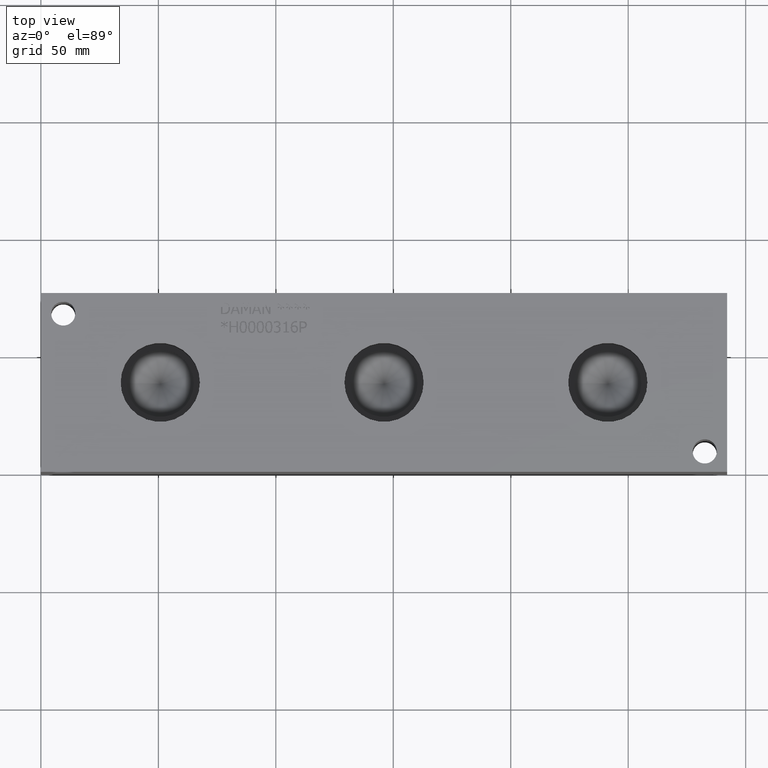
[diagram: clean part render]
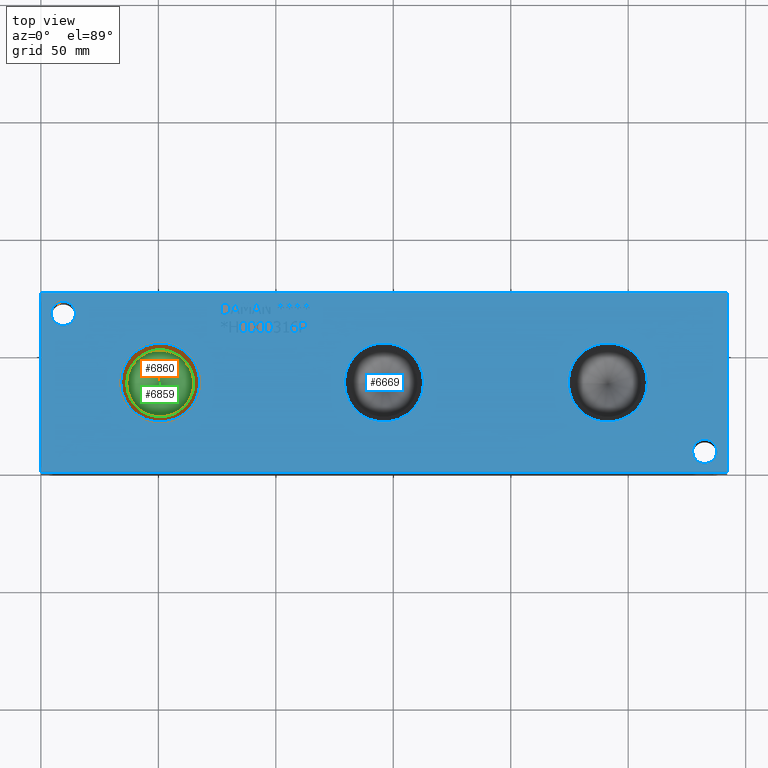
[diagram: same view with three faces highlighted in distinct colors, each labeled with its STEP entity id]
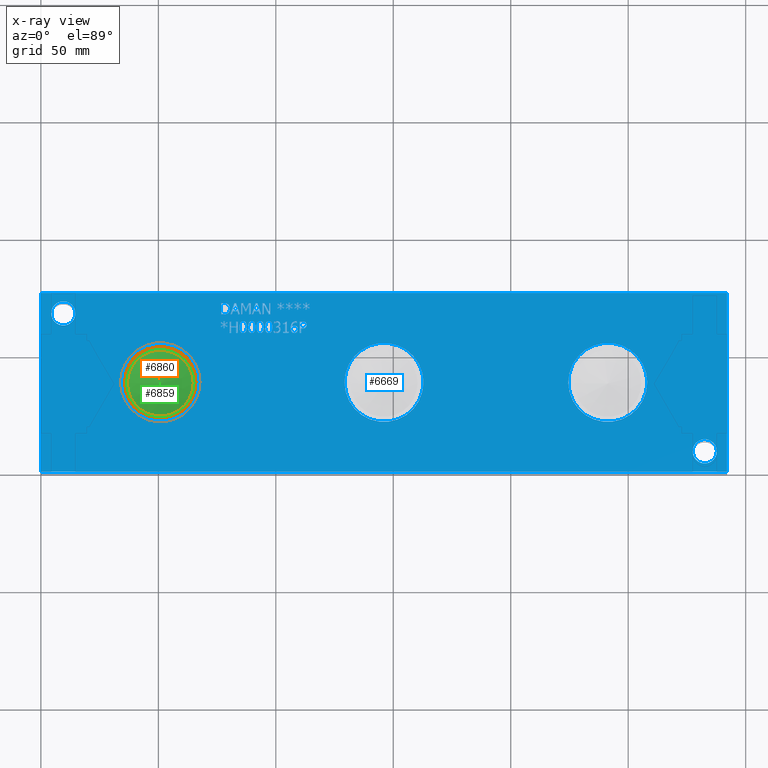
[diagram: x-ray of the same camera — body ghosted, the three highlighted faces saturated]
A machine part, top view with three faces highlighted in distinct colors.
The next image is the same camera in x-ray (body ghosted, the three faces saturated) — at least one of them is partly hidden behind the body in this view.
Their STEP definitions:

[orange] entity #6860 — the highlighted planar face has unit normal (0, 0, 1).
#82=CIRCLE('',#7163,16.8529);
#83=CIRCLE('',#7164,16.8529);
#84=CIRCLE('',#7165,14.2875);
#437=FACE_BOUND('',#1161,.T.);
#778=FACE_OUTER_BOUND('',#1160,.T.);
#1160=EDGE_LOOP('',(#5924,#5925));
#1161=EDGE_LOOP('',(#5926));
#3164=VERTEX_POINT('',#11672);
#3165=VERTEX_POINT('',#11673);
#3166=VERTEX_POINT('',#11676);
#4096=EDGE_CURVE('',#3164,#3165,#82,.T.);
#4097=EDGE_CURVE('',#3165,#3164,#83,.T.);
#4098=EDGE_CURVE('',#3166,#3166,#84,.T.);
#5924=ORIENTED_EDGE('',*,*,#4096,.T.);
#5925=ORIENTED_EDGE('',*,*,#4097,.T.);
#5926=ORIENTED_EDGE('',*,*,#4098,.F.);
#6217=PLANE('',#7162);
#6860=ADVANCED_FACE('',(#778,#437),#6217,.T.);
#7162=AXIS2_PLACEMENT_3D('',#11671,#8401,#8402);
#7163=AXIS2_PLACEMENT_3D('',#11674,#8403,#8404);
#7164=AXIS2_PLACEMENT_3D('',#11675,#8405,#8406);
#7165=AXIS2_PLACEMENT_3D('',#11677,#8407,#8408);
#8401=DIRECTION('center_axis',(0.,0.,1.));
#8402=DIRECTION('ref_axis',(1.,0.,0.));
#8403=DIRECTION('center_axis',(0.,0.,1.));
#8404=DIRECTION('ref_axis',(1.,0.,0.));
#8405=DIRECTION('center_axis',(0.,0.,1.));
#8406=DIRECTION('ref_axis',(1.,0.,0.));
#8407=DIRECTION('center_axis',(0.,0.,1.));
#8408=DIRECTION('ref_axis',(1.,0.,0.));
#11671=CARTESIAN_POINT('Origin',(50.8,38.1,57.2008));
#11672=CARTESIAN_POINT('',(67.6529,38.1,57.2008));
#11673=CARTESIAN_POINT('',(33.9471,38.1,57.2008));
#11674=CARTESIAN_POINT('Origin',(50.8,38.1,57.2008));
#11675=CARTESIAN_POINT('Origin',(50.8,38.1,57.2008));
#11676=CARTESIAN_POINT('',(36.5125,38.1,57.2008));
#11677=CARTESIAN_POINT('Origin',(50.8,38.1,57.2008));

[blue] entity #6669 — the highlighted planar face has unit normal (0, 0, 1).
#45=CIRCLE('',#7022,5.1562);
#46=CIRCLE('',#7023,5.1562);
#47=CIRCLE('',#7024,5.1562);
#48=CIRCLE('',#7025,5.1562);
#49=CIRCLE('',#7026,16.8529);
#50=CIRCLE('',#7027,16.8529);
#51=CIRCLE('',#7028,16.8529);
#52=CIRCLE('',#7029,16.8529);
#53=CIRCLE('',#7030,16.8529);
#54=CIRCLE('',#7031,16.8529);
#100=B_SPLINE_CURVE_WITH_KNOTS('',2,(#8935,#8936,#8937,#8938),
 .UNSPECIFIED.,.F.,.F.,(3,1,3),(0.,1.,2.),.UNSPECIFIED.);
#102=B_SPLINE_CURVE_WITH_KNOTS('',2,(#8956,#8957,#8958,#8959),
 .UNSPECIFIED.,.F.,.F.,(3,1,3),(0.,1.,2.),.UNSPECIFIED.);
#104=B_SPLINE_CURVE_WITH_KNOTS('',2,(#8993,#8994,#8995,#8996),
 .UNSPECIFIED.,.F.,.F.,(3,1,3),(0.,1.,2.),.UNSPECIFIED.);
#106=B_SPLINE_CURVE_WITH_KNOTS('',2,(#9011,#9012,#9013,#9014),
 .UNSPECIFIED.,.F.,.F.,(3,1,3),(0.,1.,2.),.UNSPECIFIED.);
#108=B_SPLINE_CURVE_WITH_KNOTS('',2,(#9411,#9412,#9413,#9414),
 .UNSPECIFIED.,.F.,.F.,(3,1,3),(0.,1.,2.),.UNSPECIFIED.);
#109=B_SPLINE_CURVE_WITH_KNOTS('',2,(#9482,#9483,#9484,#9485),
 .UNSPECIFIED.,.F.,.F.,(3,1,3),(0.,1.,2.),.UNSPECIFIED.);
#110=B_SPLINE_CURVE_WITH_KNOTS('',2,(#9487,#9488,#9489,#9490),
 .UNSPECIFIED.,.F.,.F.,(3,1,3),(0.,1.,2.),.UNSPECIFIED.);
#111=B_SPLINE_CURVE_WITH_KNOTS('',2,(#9492,#9493,#9494,#9495),
 .UNSPECIFIED.,.F.,.F.,(3,1,3),(0.,1.,2.),.UNSPECIFIED.);
#112=B_SPLINE_CURVE_WITH_KNOTS('',2,(#9496,#9497,#9498,#9499),
 .UNSPECIFIED.,.F.,.F.,(3,1,3),(0.,1.,2.),.UNSPECIFIED.);
#113=B_SPLINE_CURVE_WITH_KNOTS('',2,(#9502,#9503,#9504,#9505),
 .UNSPECIFIED.,.F.,.F.,(3,1,3),(0.,1.,2.),.UNSPECIFIED.);
#114=B_SPLINE_CURVE_WITH_KNOTS('',2,(#9507,#9508,#9509,#9510),
 .UNSPECIFIED.,.F.,.F.,(3,1,3),(0.,1.,2.),.UNSPECIFIED.);
#115=B_SPLINE_CURVE_WITH_KNOTS('',2,(#9512,#9513,#9514,#9515),
 .UNSPECIFIED.,.F.,.F.,(3,1,3),(0.,1.,2.),.UNSPECIFIED.);
#116=B_SPLINE_CURVE_WITH_KNOTS('',2,(#9516,#9517,#9518,#9519),
 .UNSPECIFIED.,.F.,.F.,(3,1,3),(0.,1.,2.),.UNSPECIFIED.);
#117=B_SPLINE_CURVE_WITH_KNOTS('',2,(#9522,#9523,#9524,#9525),
 .UNSPECIFIED.,.F.,.F.,(3,1,3),(0.,1.,2.),.UNSPECIFIED.);
#118=B_SPLINE_CURVE_WITH_KNOTS('',2,(#9527,#9528,#9529,#9530),
 .UNSPECIFIED.,.F.,.F.,(3,1,3),(0.,1.,2.),.UNSPECIFIED.);
#119=B_SPLINE_CURVE_WITH_KNOTS('',2,(#9532,#9533,#9534,#9535),
 .UNSPECIFIED.,.F.,.F.,(3,1,3),(0.,1.,2.),.UNSPECIFIED.);
#120=B_SPLINE_CURVE_WITH_KNOTS('',2,(#9536,#9537,#9538,#9539),
 .UNSPECIFIED.,.F.,.F.,(3,1,3),(0.,1.,2.),.UNSPECIFIED.);
#121=B_SPLINE_CURVE_WITH_KNOTS('',2,(#9542,#9543,#9544,#9545),
 .UNSPECIFIED.,.F.,.F.,(3,1,3),(0.,1.,2.),.UNSPECIFIED.);
#122=B_SPLINE_CURVE_WITH_KNOTS('',2,(#9547,#9548,#9549,#9550),
 .UNSPECIFIED.,.F.,.F.,(3,1,3),(0.,1.,2.),.UNSPECIFIED.);
#123=B_SPLINE_CURVE_WITH_KNOTS('',2,(#9552,#9553,#9554,#9555),
 .UNSPECIFIED.,.F.,.F.,(3,1,3),(0.,1.,2.),.UNSPECIFIED.);
#124=B_SPLINE_CURVE_WITH_KNOTS('',2,(#9556,#9557,#9558,#9559),
 .UNSPECIFIED.,.F.,.F.,(3,1,3),(0.,1.,2.),.UNSPECIFIED.);
#125=B_SPLINE_CURVE_WITH_KNOTS('',2,(#9562,#9563,#9564,#9565),
 .UNSPECIFIED.,.F.,.F.,(3,1,3),(0.,1.,2.),.UNSPECIFIED.);
#126=B_SPLINE_CURVE_WITH_KNOTS('',2,(#9567,#9568,#9569,#9570),
 .UNSPECIFIED.,.F.,.F.,(3,1,3),(0.,1.,2.),.UNSPECIFIED.);
#127=B_SPLINE_CURVE_WITH_KNOTS('',2,(#9572,#9573,#9574,#9575),
 .UNSPECIFIED.,.F.,.F.,(3,1,3),(0.,1.,2.),.UNSPECIFIED.);
#128=B_SPLINE_CURVE_WITH_KNOTS('',2,(#9581,#9582,#9583,#9584),
 .UNSPECIFIED.,.F.,.F.,(3,1,3),(0.,1.,2.),.UNSPECIFIED.);
#129=B_SPLINE_CURVE_WITH_KNOTS('',2,(#9586,#9587,#9588,#9589),
 .UNSPECIFIED.,.F.,.F.,(3,1,3),(0.,1.,2.),.UNSPECIFIED.);
#130=B_SPLINE_CURVE_WITH_KNOTS('',2,(#9591,#9592,#9593,#9594),
 .UNSPECIFIED.,.F.,.F.,(3,1,3),(0.,1.,2.),.UNSPECIFIED.);
#131=B_SPLINE_CURVE_WITH_KNOTS('',2,(#9596,#9597,#9598,#9599),
 .UNSPECIFIED.,.F.,.F.,(3,1,3),(0.,1.,2.),.UNSPECIFIED.);
#132=B_SPLINE_CURVE_WITH_KNOTS('',2,(#9603,#9604,#9605,#9606),
 .UNSPECIFIED.,.F.,.F.,(3,1,3),(0.,1.,2.),.UNSPECIFIED.);
#133=B_SPLINE_CURVE_WITH_KNOTS('',2,(#9608,#9609,#9610,#9611),
 .UNSPECIFIED.,.F.,.F.,(3,1,3),(0.,1.,2.),.UNSPECIFIED.);
#134=B_SPLINE_CURVE_WITH_KNOTS('',2,(#9613,#9614,#9615,#9616),
 .UNSPECIFIED.,.F.,.F.,(3,1,3),(0.,1.,2.),.UNSPECIFIED.);
#135=B_SPLINE_CURVE_WITH_KNOTS('',2,(#9618,#9619,#9620,#9621),
 .UNSPECIFIED.,.F.,.F.,(3,1,3),(0.,1.,2.),.UNSPECIFIED.);
#136=B_SPLINE_CURVE_WITH_KNOTS('',2,(#9623,#9624,#9625,#9626),
 .UNSPECIFIED.,.F.,.F.,(3,1,3),(0.,1.,2.),.UNSPECIFIED.);
#137=B_SPLINE_CURVE_WITH_KNOTS('',2,(#9632,#9633,#9634,#9635),
 .UNSPECIFIED.,.F.,.F.,(3,1,3),(0.,1.,2.),.UNSPECIFIED.);
#138=B_SPLINE_CURVE_WITH_KNOTS('',2,(#9637,#9638,#9639,#9640),
 .UNSPECIFIED.,.F.,.F.,(3,1,3),(0.,1.,2.),.UNSPECIFIED.);
#139=B_SPLINE_CURVE_WITH_KNOTS('',2,(#9642,#9643,#9644,#9645),
 .UNSPECIFIED.,.F.,.F.,(3,1,3),(0.,1.,2.),.UNSPECIFIED.);
#140=B_SPLINE_CURVE_WITH_KNOTS('',2,(#9647,#9648,#9649,#9650),
 .UNSPECIFIED.,.F.,.F.,(3,1,3),(0.,1.,2.),.UNSPECIFIED.);
#141=B_SPLINE_CURVE_WITH_KNOTS('',2,(#9652,#9653,#9654,#9655),
 .UNSPECIFIED.,.F.,.F.,(3,1,3),(0.,1.,2.),.UNSPECIFIED.);
#142=B_SPLINE_CURVE_WITH_KNOTS('',2,(#9663,#9664,#9665,#9666),
 .UNSPECIFIED.,.F.,.F.,(3,1,3),(0.,1.,2.),.UNSPECIFIED.);
#143=B_SPLINE_CURVE_WITH_KNOTS('',2,(#9667,#9668,#9669,#9670),
 .UNSPECIFIED.,.F.,.F.,(3,1,3),(0.,1.,2.),.UNSPECIFIED.);
#144=B_SPLINE_CURVE_WITH_KNOTS('',2,(#9673,#9674,#9675,#9676),
 .UNSPECIFIED.,.F.,.F.,(3,1,3),(0.,1.,2.),.UNSPECIFIED.);
#145=B_SPLINE_CURVE_WITH_KNOTS('',2,(#9678,#9679,#9680,#9681),
 .UNSPECIFIED.,.F.,.F.,(3,1,3),(0.,1.,2.),.UNSPECIFIED.);
#146=B_SPLINE_CURVE_WITH_KNOTS('',2,(#9683,#9684,#9685,#9686),
 .UNSPECIFIED.,.F.,.F.,(3,1,3),(0.,1.,2.),.UNSPECIFIED.);
#147=B_SPLINE_CURVE_WITH_KNOTS('',2,(#9688,#9689,#9690,#9691),
 .UNSPECIFIED.,.F.,.F.,(3,1,3),(0.,1.,2.),.UNSPECIFIED.);
#148=B_SPLINE_CURVE_WITH_KNOTS('',2,(#9693,#9694,#9695,#9696),
 .UNSPECIFIED.,.F.,.F.,(3,1,3),(0.,1.,2.),.UNSPECIFIED.);
#149=B_SPLINE_CURVE_WITH_KNOTS('',2,(#9698,#9699,#9700,#9701),
 .UNSPECIFIED.,.F.,.F.,(3,1,3),(0.,1.,2.),.UNSPECIFIED.);
#150=B_SPLINE_CURVE_WITH_KNOTS('',2,(#9703,#9704,#9705,#9706),
 .UNSPECIFIED.,.F.,.F.,(3,1,3),(0.,1.,2.),.UNSPECIFIED.);
#151=B_SPLINE_CURVE_WITH_KNOTS('',2,(#9708,#9709,#9710,#9711),
 .UNSPECIFIED.,.F.,.F.,(3,1,3),(0.,1.,2.),.UNSPECIFIED.);
#152=B_SPLINE_CURVE_WITH_KNOTS('',2,(#9717,#9718,#9719,#9720),
 .UNSPECIFIED.,.F.,.F.,(3,1,3),(0.,1.,2.),.UNSPECIFIED.);
#153=B_SPLINE_CURVE_WITH_KNOTS('',2,(#9722,#9723,#9724,#9725),
 .UNSPECIFIED.,.F.,.F.,(3,1,3),(0.,1.,2.),.UNSPECIFIED.);
#154=B_SPLINE_CURVE_WITH_KNOTS('',2,(#9727,#9728,#9729,#9730),
 .UNSPECIFIED.,.F.,.F.,(3,1,3),(0.,1.,2.),.UNSPECIFIED.);
#155=B_SPLINE_CURVE_WITH_KNOTS('',2,(#9731,#9732,#9733,#9734),
 .UNSPECIFIED.,.F.,.F.,(3,1,3),(0.,1.,2.),.UNSPECIFIED.);
#156=B_SPLINE_CURVE_WITH_KNOTS('',2,(#9737,#9738,#9739,#9740),
 .UNSPECIFIED.,.F.,.F.,(3,1,3),(0.,1.,2.),.UNSPECIFIED.);
#157=B_SPLINE_CURVE_WITH_KNOTS('',2,(#9742,#9743,#9744,#9745),
 .UNSPECIFIED.,.F.,.F.,(3,1,3),(0.,1.,2.),.UNSPECIFIED.);
#158=B_SPLINE_CURVE_WITH_KNOTS('',2,(#9747,#9748,#9749,#9750),
 .UNSPECIFIED.,.F.,.F.,(3,1,3),(0.,1.,2.),.UNSPECIFIED.);
#159=B_SPLINE_CURVE_WITH_KNOTS('',2,(#9761,#9762,#9763,#9764),
 .UNSPECIFIED.,.F.,.F.,(3,1,3),(0.,1.,2.),.UNSPECIFIED.);
#404=FACE_BOUND('',#937,.T.);
#405=FACE_BOUND('',#938,.T.);
#406=FACE_BOUND('',#939,.T.);
#407=FACE_BOUND('',#940,.T.);
#408=FACE_BOUND('',#941,.T.);
#409=FACE_BOUND('',#942,.T.);
#410=FACE_BOUND('',#943,.T.);
#411=FACE_BOUND('',#944,.T.);
#412=FACE_BOUND('',#945,.T.);
#413=FACE_BOUND('',#946,.T.);
#414=FACE_BOUND('',#947,.T.);
#415=FACE_BOUND('',#948,.T.);
#416=FACE_BOUND('',#949,.T.);
#417=FACE_BOUND('',#950,.T.);
#418=FACE_BOUND('',#951,.T.);
#419=FACE_BOUND('',#952,.T.);
#420=FACE_BOUND('',#953,.T.);
#421=FACE_BOUND('',#954,.T.);
#422=FACE_BOUND('',#955,.T.);
#423=FACE_BOUND('',#956,.T.);
#424=FACE_BOUND('',#957,.T.);
#425=FACE_BOUND('',#958,.T.);
#426=FACE_BOUND('',#959,.T.);
#427=FACE_BOUND('',#960,.T.);
#587=FACE_OUTER_BOUND('',#936,.T.);
#936=EDGE_LOOP('',(#4776,#4777,#4778,#4779));
#937=EDGE_LOOP('',(#4780,#4781));
#938=EDGE_LOOP('',(#4782,#4783));
#939=EDGE_LOOP('',(#4784,#4785));
#940=EDGE_LOOP('',(#4786,#4787));
#941=EDGE_LOOP('',(#4788,#4789));
#942=EDGE_LOOP('',(#4790,#4791,#4792,#4793,#4794,#4795,#4796,#4797,#4798,
#4799,#4800));
#943=EDGE_LOOP('',(#4801,#4802,#4803,#4804,#4805,#4806,#4807,#4808,#4809,
#4810,#4811,#4812));
#944=EDGE_LOOP('',(#4813,#4814,#4815,#4816,#4817,#4818,#4819,#4820,#4821,
#4822,#4823,#4824,#4825,#4826,#4827,#4828,#4829,#4830));
#945=EDGE_LOOP('',(#4831,#4832,#4833,#4834));
#946=EDGE_LOOP('',(#4835,#4836,#4837,#4838));
#947=EDGE_LOOP('',(#4839,#4840,#4841,#4842));
#948=EDGE_LOOP('',(#4843,#4844,#4845,#4846));
#949=EDGE_LOOP('',(#4847,#4848,#4849,#4850,#4851,#4852,#4853,#4854,#4855,
#4856,#4857,#4858,#4859,#4860,#4861,#4862,#4863,#4864,#4865,#4866,#4867,
#4868,#4869,#4870,#4871,#4872,#4873));
#950=EDGE_LOOP('',(#4874,#4875,#4876,#4877,#4878,#4879,#4880,#4881,#4882,
#4883,#4884,#4885,#4886,#4887));
#951=EDGE_LOOP('',(#4888,#4889,#4890,#4891,#4892,#4893,#4894,#4895,#4896));
#952=EDGE_LOOP('',(#4897,#4898,#4899,#4900,#4901,#4902,#4903,#4904,#4905,
#4906,#4907,#4908,#4909,#4910,#4911,#4912,#4913,#4914));
#953=EDGE_LOOP('',(#4915,#4916,#4917,#4918,#4919,#4920,#4921,#4922,#4923,
#4924,#4925,#4926,#4927,#4928,#4929,#4930,#4931,#4932));
#954=EDGE_LOOP('',(#4933,#4934,#4935,#4936,#4937,#4938,#4939,#4940,#4941,
#4942));
#955=EDGE_LOOP('',(#4943,#4944,#4945,#4946,#4947,#4948,#4949,#4950));
#956=EDGE_LOOP('',(#4951,#4952,#4953,#4954,#4955,#4956,#4957));
#957=EDGE_LOOP('',(#4958,#4959,#4960,#4961,#4962,#4963,#4964,#4965));
#958=EDGE_LOOP('',(#4966,#4967,#4968,#4969,#4970,#4971,#4972,#4973,#4974,
#4975,#4976,#4977,#4978));
#959=EDGE_LOOP('',(#4979,#4980,#4981,#4982,#4983,#4984,#4985,#4986,#4987,
#4988,#4989,#4990,#4991,#4992,#4993,#4994,#4995,#4996));
#960=EDGE_LOOP('',(#4997,#4998,#4999,#5000,#5001,#5002,#5003,#5004,#5005,
#5006,#5007,#5008,#5009,#5010,#5011,#5012,#5013,#5014));
#1185=LINE('',#8470,#1866);
#1189=LINE('',#8478,#1870);
#1192=LINE('',#8484,#1873);
#1195=LINE('',#8490,#1876);
#1198=LINE('',#8496,#1879);
#1201=LINE('',#8502,#1882);
#1204=LINE('',#8508,#1885);
#1207=LINE('',#8514,#1888);
#1210=LINE('',#8520,#1891);
#1213=LINE('',#8526,#1894);
#1216=LINE('',#8532,#1897);
#1219=LINE('',#8538,#1900);
#1222=LINE('',#8544,#1903);
#1225=LINE('',#8550,#1906);
#1228=LINE('',#8556,#1909);
#1231=LINE('',#8562,#1912);
#1234=LINE('',#8568,#1915);
#1237=LINE('',#8573,#1918);
#1239=LINE('',#8579,#1920);
#1243=LINE('',#8587,#1924);
#1246=LINE('',#8593,#1927);
#1249=LINE('',#8599,#1930);
#1252=LINE('',#8605,#1933);
#1255=LINE('',#8611,#1936);
#1258=LINE('',#8617,#1939);
#1261=LINE('',#8623,#1942);
#1264=LINE('',#8629,#1945);
#1267=LINE('',#8635,#1948);
#1270=LINE('',#8641,#1951);
#1273=LINE('',#8647,#1954);
#1276=LINE('',#8653,#1957);
#1279=LINE('',#8659,#1960);
#1282=LINE('',#8665,#1963);
#1285=LINE('',#8671,#1966);
#1288=LINE('',#8677,#1969);
#1291=LINE('',#8682,#1972);
#1293=LINE('',#8688,#1974);
#1297=LINE('',#8696,#1978);
#1300=LINE('',#8702,#1981);
#1303=LINE('',#8708,#1984);
#1306=LINE('',#8714,#1987);
#1309=LINE('',#8720,#1990);
#1312=LINE('',#8726,#1993);
#1315=LINE('',#8732,#1996);
#1318=LINE('',#8738,#1999);
#1321=LINE('',#8744,#2002);
#1324=LINE('',#8750,#2005);
#1327=LINE('',#8756,#2008);
#1330=LINE('',#8761,#2011);
#1341=LINE('',#8785,#2022);
#1345=LINE('',#8793,#2026);
#1348=LINE('',#8799,#2029);
#1351=LINE('',#8805,#2032);
#1354=LINE('',#8811,#2035);
#1357=LINE('',#8817,#2038);
#1360=LINE('',#8823,#2041);
#1363=LINE('',#8828,#2044);
#1381=LINE('',#8968,#2062);
#1384=LINE('',#8974,#2065);
#1387=LINE('',#8980,#2068);
#1400=LINE('',#9041,#2081);
#1404=LINE('',#9049,#2085);
#1407=LINE('',#9055,#2088);
#1410=LINE('',#9061,#2091);
#1413=LINE('',#9067,#2094);
#1416=LINE('',#9073,#2097);
#1419=LINE('',#9079,#2100);
#1422=LINE('',#9084,#2103);
#1424=LINE('',#9090,#2105);
#1428=LINE('',#9098,#2109);
#1431=LINE('',#9104,#2112);
#1434=LINE('',#9110,#2115);
#1437=LINE('',#9116,#2118);
#1440=LINE('',#9122,#2121);
#1443=LINE('',#9128,#2124);
#1446=LINE('',#9134,#2127);
#1449=LINE('',#9140,#2130);
#1452=LINE('',#9145,#2133);
#1454=LINE('',#9151,#2135);
#1458=LINE('',#9159,#2139);
#1461=LINE('',#9165,#2142);
#1464=LINE('',#9171,#2145);
#1467=LINE('',#9177,#2148);
#1470=LINE('',#9183,#2151);
#1473=LINE('',#9189,#2154);
#1476=LINE('',#9195,#2157);
#1479=LINE('',#9201,#2160);
#1482=LINE('',#9207,#2163);
#1485=LINE('',#9213,#2166);
#1488=LINE('',#9219,#2169);
#1491=LINE('',#9225,#2172);
#1494=LINE('',#9231,#2175);
#1497=LINE('',#9237,#2178);
#1500=LINE('',#9243,#2181);
#1503=LINE('',#9249,#2184);
#1506=LINE('',#9254,#2187);
#1508=LINE('',#9260,#2189);
#1512=LINE('',#9268,#2193);
#1515=LINE('',#9274,#2196);
#1518=LINE('',#9280,#2199);
#1521=LINE('',#9286,#2202);
#1524=LINE('',#9292,#2205);
#1527=LINE('',#9298,#2208);
#1530=LINE('',#9304,#2211);
#1533=LINE('',#9310,#2214);
#1536=LINE('',#9316,#2217);
#1539=LINE('',#9322,#2220);
#1542=LINE('',#9328,#2223);
#1545=LINE('',#9334,#2226);
#1548=LINE('',#9340,#2229);
#1551=LINE('',#9346,#2232);
#1554=LINE('',#9352,#2235);
#1557=LINE('',#9358,#2238);
#1560=LINE('',#9363,#2241);
#1562=LINE('',#9369,#2243);
#1563=LINE('',#9371,#2244);
#1564=LINE('',#9373,#2245);
#1565=LINE('',#9374,#2246);
#1566=LINE('',#9397,#2247);
#1567=LINE('',#9399,#2248);
#1568=LINE('',#9401,#2249);
#1569=LINE('',#9403,#2250);
#1570=LINE('',#9405,#2251);
#1571=LINE('',#9407,#2252);
#1572=LINE('',#9409,#2253);
#1573=LINE('',#9416,#2254);
#1574=LINE('',#9418,#2255);
#1575=LINE('',#9419,#2256);
#1576=LINE('',#9422,#2257);
#1577=LINE('',#9424,#2258);
#1578=LINE('',#9426,#2259);
#1579=LINE('',#9428,#2260);
#1580=LINE('',#9430,#2261);
#1581=LINE('',#9432,#2262);
#1582=LINE('',#9434,#2263);
#1583=LINE('',#9436,#2264);
#1584=LINE('',#9438,#2265);
#1585=LINE('',#9440,#2266);
#1586=LINE('',#9442,#2267);
#1587=LINE('',#9443,#2268);
#1588=LINE('',#9446,#2269);
#1589=LINE('',#9448,#2270);
#1590=LINE('',#9450,#2271);
#1591=LINE('',#9452,#2272);
#1592=LINE('',#9454,#2273);
#1593=LINE('',#9456,#2274);
#1594=LINE('',#9458,#2275);
#1595=LINE('',#9460,#2276);
#1596=LINE('',#9462,#2277);
#1597=LINE('',#9464,#2278);
#1598=LINE('',#9466,#2279);
#1599=LINE('',#9468,#2280);
#1600=LINE('',#9470,#2281);
#1601=LINE('',#9472,#2282);
#1602=LINE('',#9474,#2283);
#1603=LINE('',#9476,#2284);
#1604=LINE('',#9478,#2285);
#1605=LINE('',#9479,#2286);
#1606=LINE('',#9577,#2287);
#1607=LINE('',#9579,#2288);
#1608=LINE('',#9601,#2289);
#1609=LINE('',#9628,#2290);
#1610=LINE('',#9630,#2291);
#1611=LINE('',#9657,#2292);
#1612=LINE('',#9659,#2293);
#1613=LINE('',#9661,#2294);
#1614=LINE('',#9713,#2295);
#1615=LINE('',#9715,#2296);
#1616=LINE('',#9752,#2297);
#1617=LINE('',#9754,#2298);
#1618=LINE('',#9756,#2299);
#1619=LINE('',#9758,#2300);
#1620=LINE('',#9760,#2301);
#1866=VECTOR('',#7191,10.);
#1870=VECTOR('',#7197,10.);
#1873=VECTOR('',#7202,10.);
#1876=VECTOR('',#7207,10.);
#1879=VECTOR('',#7212,10.);
#1882=VECTOR('',#7217,10.);
#1885=VECTOR('',#7222,10.);
#1888=VECTOR('',#7227,10.);
#1891=VECTOR('',#7232,10.);
#1894=VECTOR('',#7237,10.);
#1897=VECTOR('',#7242,10.);
#1900=VECTOR('',#7247,10.);
#1903=VECTOR('',#7252,10.);
#1906=VECTOR('',#7257,10.);
#1909=VECTOR('',#7262,10.);
#1912=VECTOR('',#7267,10.);
#1915=VECTOR('',#7272,10.);
#1918=VECTOR('',#7277,10.);
#1920=VECTOR('',#7283,10.);
#1924=VECTOR('',#7289,10.);
#1927=VECTOR('',#7294,10.);
#1930=VECTOR('',#7299,10.);
#1933=VECTOR('',#7304,10.);
#1936=VECTOR('',#7309,10.);
#1939=VECTOR('',#7314,10.);
#1942=VECTOR('',#7319,10.);
#1945=VECTOR('',#7324,10.);
#1948=VECTOR('',#7329,10.);
#1951=VECTOR('',#7334,10.);
#1954=VECTOR('',#7339,10.);
#1957=VECTOR('',#7344,10.);
#1960=VECTOR('',#7349,10.);
#1963=VECTOR('',#7354,10.);
#1966=VECTOR('',#7359,10.);
#1969=VECTOR('',#7364,10.);
#1972=VECTOR('',#7369,10.);
#1974=VECTOR('',#7375,10.);
#1978=VECTOR('',#7381,10.);
#1981=VECTOR('',#7386,10.);
#1984=VECTOR('',#7391,10.);
#1987=VECTOR('',#7396,10.);
#1990=VECTOR('',#7401,10.);
#1993=VECTOR('',#7406,10.);
#1996=VECTOR('',#7411,10.);
#1999=VECTOR('',#7416,10.);
#2002=VECTOR('',#7421,10.);
#2005=VECTOR('',#7426,10.);
#2008=VECTOR('',#7431,10.);
#2011=VECTOR('',#7436,10.);
#2022=VECTOR('',#7457,10.);
#2026=VECTOR('',#7463,10.);
#2029=VECTOR('',#7468,10.);
#2032=VECTOR('',#7473,10.);
#2035=VECTOR('',#7478,10.);
#2038=VECTOR('',#7483,10.);
#2041=VECTOR('',#7488,10.);
#2044=VECTOR('',#7493,10.);
#2062=VECTOR('',#7521,10.);
#2065=VECTOR('',#7526,10.);
#2068=VECTOR('',#7531,10.);
#2081=VECTOR('',#7554,10.);
#2085=VECTOR('',#7560,10.);
#2088=VECTOR('',#7565,10.);
#2091=VECTOR('',#7570,10.);
#2094=VECTOR('',#7575,10.);
#2097=VECTOR('',#7580,10.);
#2100=VECTOR('',#7585,10.);
#2103=VECTOR('',#7590,10.);
#2105=VECTOR('',#7596,10.);
#2109=VECTOR('',#7602,10.);
#2112=VECTOR('',#7607,10.);
#2115=VECTOR('',#7612,10.);
#2118=VECTOR('',#7617,10.);
#2121=VECTOR('',#7622,10.);
#2124=VECTOR('',#7627,10.);
#2127=VECTOR('',#7632,10.);
#2130=VECTOR('',#7637,10.);
#2133=VECTOR('',#7642,10.);
#2135=VECTOR('',#7648,10.);
#2139=VECTOR('',#7654,10.);
#2142=VECTOR('',#7659,10.);
#2145=VECTOR('',#7664,10.);
#2148=VECTOR('',#7669,10.);
#2151=VECTOR('',#7674,10.);
#2154=VECTOR('',#7679,10.);
#2157=VECTOR('',#7684,10.);
#2160=VECTOR('',#7689,10.);
#2163=VECTOR('',#7694,10.);
#2166=VECTOR('',#7699,10.);
#2169=VECTOR('',#7704,10.);
#2172=VECTOR('',#7709,10.);
#2175=VECTOR('',#7714,10.);
#2178=VECTOR('',#7719,10.);
#2181=VECTOR('',#7724,10.);
#2184=VECTOR('',#7729,10.);
#2187=VECTOR('',#7734,10.);
#2189=VECTOR('',#7740,10.);
#2193=VECTOR('',#7746,10.);
#2196=VECTOR('',#7751,10.);
#2199=VECTOR('',#7756,10.);
#2202=VECTOR('',#7761,10.);
#2205=VECTOR('',#7766,10.);
#2208=VECTOR('',#7771,10.);
#2211=VECTOR('',#7776,10.);
#2214=VECTOR('',#7781,10.);
#2217=VECTOR('',#7786,10.);
#2220=VECTOR('',#7791,10.);
#2223=VECTOR('',#7796,10.);
#2226=VECTOR('',#7801,10.);
#2229=VECTOR('',#7806,10.);
#2232=VECTOR('',#7811,10.);
#2235=VECTOR('',#7816,10.);
#2238=VECTOR('',#7821,10.);
#2241=VECTOR('',#7826,10.);
#2243=VECTOR('',#7832,10.);
#2244=VECTOR('',#7833,10.);
#2245=VECTOR('',#7834,10.);
#2246=VECTOR('',#7835,10.);
#2247=VECTOR('',#7856,10.);
#2248=VECTOR('',#7857,10.);
#2249=VECTOR('',#7858,10.);
#2250=VECTOR('',#7859,10.);
#2251=VECTOR('',#7860,10.);
#2252=VECTOR('',#7861,10.);
#2253=VECTOR('',#7862,10.);
#2254=VECTOR('',#7863,10.);
#2255=VECTOR('',#7864,10.);
#2256=VECTOR('',#7865,10.);
#2257=VECTOR('',#7866,10.);
#2258=VECTOR('',#7867,10.);
#2259=VECTOR('',#7868,10.);
#2260=VECTOR('',#7869,10.);
#2261=VECTOR('',#7870,10.);
#2262=VECTOR('',#7871,10.);
#2263=VECTOR('',#7872,10.);
#2264=VECTOR('',#7873,10.);
#2265=VECTOR('',#7874,10.);
#2266=VECTOR('',#7875,10.);
#2267=VECTOR('',#7876,10.);
#2268=VECTOR('',#7877,10.);
#2269=VECTOR('',#7878,10.);
#2270=VECTOR('',#7879,10.);
#2271=VECTOR('',#7880,10.);
#2272=VECTOR('',#7881,10.);
#2273=VECTOR('',#7882,10.);
#2274=VECTOR('',#7883,10.);
#2275=VECTOR('',#7884,10.);
#2276=VECTOR('',#7885,10.);
#2277=VECTOR('',#7886,10.);
#2278=VECTOR('',#7887,10.);
#2279=VECTOR('',#7888,10.);
#2280=VECTOR('',#7889,10.);
#2281=VECTOR('',#7890,10.);
#2282=VECTOR('',#7891,10.);
#2283=VECTOR('',#7892,10.);
#2284=VECTOR('',#7893,10.);
#2285=VECTOR('',#7894,10.);
#2286=VECTOR('',#7895,10.);
#2287=VECTOR('',#7896,10.);
#2288=VECTOR('',#7897,10.);
#2289=VECTOR('',#7898,10.);
#2290=VECTOR('',#7899,10.);
#2291=VECTOR('',#7900,10.);
#2292=VECTOR('',#7901,10.);
#2293=VECTOR('',#7902,10.);
#2294=VECTOR('',#7903,10.);
#2295=VECTOR('',#7904,10.);
#2296=VECTOR('',#7905,10.);
#2297=VECTOR('',#7906,10.);
#2298=VECTOR('',#7907,10.);
#2299=VECTOR('',#7908,10.);
#2300=VECTOR('',#7909,10.);
#2301=VECTOR('',#7910,10.);
#2547=VERTEX_POINT('',#8468);
#2548=VERTEX_POINT('',#8469);
#2551=VERTEX_POINT('',#8477);
#2553=VERTEX_POINT('',#8483);
#2555=VERTEX_POINT('',#8489);
#2557=VERTEX_POINT('',#8495);
#2559=VERTEX_POINT('',#8501);
#2561=VERTEX_POINT('',#8507);
#2563=VERTEX_POINT('',#8513);
#2565=VERTEX_POINT('',#8519);
#2567=VERTEX_POINT('',#8525);
#2569=VERTEX_POINT('',#8531);
#2571=VERTEX_POINT('',#8537);
#2573=VERTEX_POINT('',#8543);
#2575=VERTEX_POINT('',#8549);
#2577=VERTEX_POINT('',#8555);
#2579=VERTEX_POINT('',#8561);
#2581=VERTEX_POINT('',#8567);
#2583=VERTEX_POINT('',#8577);
#2584=VERTEX_POINT('',#8578);
#2587=VERTEX_POINT('',#8586);
#2589=VERTEX_POINT('',#8592);
#2591=VERTEX_POINT('',#8598);
#2593=VERTEX_POINT('',#8604);
#2595=VERTEX_POINT('',#8610);
#2597=VERTEX_POINT('',#8616);
#2599=VERTEX_POINT('',#8622);
#2601=VERTEX_POINT('',#8628);
#2603=VERTEX_POINT('',#8634);
#2605=VERTEX_POINT('',#8640);
#2607=VERTEX_POINT('',#8646);
#2609=VERTEX_POINT('',#8652);
#2611=VERTEX_POINT('',#8658);
#2613=VERTEX_POINT('',#8664);
#2615=VERTEX_POINT('',#8670);
#2617=VERTEX_POINT('',#8676);
#2619=VERTEX_POINT('',#8686);
#2620=VERTEX_POINT('',#8687);
#2623=VERTEX_POINT('',#8695);
#2625=VERTEX_POINT('',#8701);
#2627=VERTEX_POINT('',#8707);
#2629=VERTEX_POINT('',#8713);
#2631=VERTEX_POINT('',#8719);
#2633=VERTEX_POINT('',#8725);
#2635=VERTEX_POINT('',#8731);
#2637=VERTEX_POINT('',#8737);
#2639=VERTEX_POINT('',#8743);
#2641=VERTEX_POINT('',#8749);
#2643=VERTEX_POINT('',#8755);
#2651=VERTEX_POINT('',#8783);
#2652=VERTEX_POINT('',#8784);
#2655=VERTEX_POINT('',#8792);
#2657=VERTEX_POINT('',#8798);
#2659=VERTEX_POINT('',#8804);
#2661=VERTEX_POINT('',#8810);
#2663=VERTEX_POINT('',#8816);
#2665=VERTEX_POINT('',#8822);
#2681=VERTEX_POINT('',#8933);
#2682=VERTEX_POINT('',#8934);
#2685=VERTEX_POINT('',#8955);
#2687=VERTEX_POINT('',#8967);
#2689=VERTEX_POINT('',#8973);
#2691=VERTEX_POINT('',#8979);
#2693=VERTEX_POINT('',#8992);
#2701=VERTEX_POINT('',#9039);
#2702=VERTEX_POINT('',#9040);
#2705=VERTEX_POINT('',#9048);
#2707=VERTEX_POINT('',#9054);
#2709=VERTEX_POINT('',#9060);
#2711=VERTEX_POINT('',#9066);
#2713=VERTEX_POINT('',#9072);
#2715=VERTEX_POINT('',#9078);
#2717=VERTEX_POINT('',#9088);
#2718=VERTEX_POINT('',#9089);
#2721=VERTEX_POINT('',#9097);
#2723=VERTEX_POINT('',#9103);
#2725=VERTEX_POINT('',#9109);
#2727=VERTEX_POINT('',#9115);
#2729=VERTEX_POINT('',#9121);
#2731=VERTEX_POINT('',#9127);
#2733=VERTEX_POINT('',#9133);
#2735=VERTEX_POINT('',#9139);
#2737=VERTEX_POINT('',#9149);
#2738=VERTEX_POINT('',#9150);
#2741=VERTEX_POINT('',#9158);
#2743=VERTEX_POINT('',#9164);
#2745=VERTEX_POINT('',#9170);
#2747=VERTEX_POINT('',#9176);
#2749=VERTEX_POINT('',#9182);
#2751=VERTEX_POINT('',#9188);
#2753=VERTEX_POINT('',#9194);
#2755=VERTEX_POINT('',#9200);
#2757=VERTEX_POINT('',#9206);
#2759=VERTEX_POINT('',#9212);
#2761=VERTEX_POINT('',#9218);
#2763=VERTEX_POINT('',#9224);
#2765=VERTEX_POINT('',#9230);
#2767=VERTEX_POINT('',#9236);
#2769=VERTEX_POINT('',#9242);
#2771=VERTEX_POINT('',#9248);
#2773=VERTEX_POINT('',#9258);
#2774=VERTEX_POINT('',#9259);
#2777=VERTEX_POINT('',#9267);
#2779=VERTEX_POINT('',#9273);
#2781=VERTEX_POINT('',#9279);
#2783=VERTEX_POINT('',#9285);
#2785=VERTEX_POINT('',#9291);
#2787=VERTEX_POINT('',#9297);
#2789=VERTEX_POINT('',#9303);
#2791=VERTEX_POINT('',#9309);
#2793=VERTEX_POINT('',#9315);
#2795=VERTEX_POINT('',#9321);
#2797=VERTEX_POINT('',#9327);
#2799=VERTEX_POINT('',#9333);
#2801=VERTEX_POINT('',#9339);
#2803=VERTEX_POINT('',#9345);
#2805=VERTEX_POINT('',#9351);
#2807=VERTEX_POINT('',#9357);
#2809=VERTEX_POINT('',#9367);
#2810=VERTEX_POINT('',#9368);
#2811=VERTEX_POINT('',#9370);
#2812=VERTEX_POINT('',#9372);
#2813=VERTEX_POINT('',#9375);
#2814=VERTEX_POINT('',#9376);
#2815=VERTEX_POINT('',#9379);
#2816=VERTEX_POINT('',#9380);
#2817=VERTEX_POINT('',#9383);
#2818=VERTEX_POINT('',#9384);
#2819=VERTEX_POINT('',#9387);
#2820=VERTEX_POINT('',#9388);
#2821=VERTEX_POINT('',#9391);
#2822=VERTEX_POINT('',#9392);
#2823=VERTEX_POINT('',#9395);
#2824=VERTEX_POINT('',#9396);
#2825=VERTEX_POINT('',#9398);
#2826=VERTEX_POINT('',#9400);
#2827=VERTEX_POINT('',#9402);
#2828=VERTEX_POINT('',#9404);
#2829=VERTEX_POINT('',#9406);
#2830=VERTEX_POINT('',#9408);
#2831=VERTEX_POINT('',#9410);
#2832=VERTEX_POINT('',#9415);
#2833=VERTEX_POINT('',#9417);
#2834=VERTEX_POINT('',#9420);
#2835=VERTEX_POINT('',#9421);
#2836=VERTEX_POINT('',#9423);
#2837=VERTEX_POINT('',#9425);
#2838=VERTEX_POINT('',#9427);
#2839=VERTEX_POINT('',#9429);
#2840=VERTEX_POINT('',#9431);
#2841=VERTEX_POINT('',#9433);
#2842=VERTEX_POINT('',#9435);
#2843=VERTEX_POINT('',#9437);
#2844=VERTEX_POINT('',#9439);
#2845=VERTEX_POINT('',#9441);
#2846=VERTEX_POINT('',#9444);
#2847=VERTEX_POINT('',#9445);
#2848=VERTEX_POINT('',#9447);
#2849=VERTEX_POINT('',#9449);
#2850=VERTEX_POINT('',#9451);
#2851=VERTEX_POINT('',#9453);
#2852=VERTEX_POINT('',#9455);
#2853=VERTEX_POINT('',#9457);
#2854=VERTEX_POINT('',#9459);
#2855=VERTEX_POINT('',#9461);
#2856=VERTEX_POINT('',#9463);
#2857=VERTEX_POINT('',#9465);
#2858=VERTEX_POINT('',#9467);
#2859=VERTEX_POINT('',#9469);
#2860=VERTEX_POINT('',#9471);
#2861=VERTEX_POINT('',#9473);
#2862=VERTEX_POINT('',#9475);
#2863=VERTEX_POINT('',#9477);
#2864=VERTEX_POINT('',#9480);
#2865=VERTEX_POINT('',#9481);
#2866=VERTEX_POINT('',#9486);
#2867=VERTEX_POINT('',#9491);
#2868=VERTEX_POINT('',#9500);
#2869=VERTEX_POINT('',#9501);
#2870=VERTEX_POINT('',#9506);
#2871=VERTEX_POINT('',#9511);
#2872=VERTEX_POINT('',#9520);
#2873=VERTEX_POINT('',#9521);
#2874=VERTEX_POINT('',#9526);
#2875=VERTEX_POINT('',#9531);
#2876=VERTEX_POINT('',#9540);
#2877=VERTEX_POINT('',#9541);
#2878=VERTEX_POINT('',#9546);
#2879=VERTEX_POINT('',#9551);
#2880=VERTEX_POINT('',#9560);
#2881=VERTEX_POINT('',#9561);
#2882=VERTEX_POINT('',#9566);
#2883=VERTEX_POINT('',#9571);
#2884=VERTEX_POINT('',#9576);
#2885=VERTEX_POINT('',#9578);
#2886=VERTEX_POINT('',#9580);
#2887=VERTEX_POINT('',#9585);
#2888=VERTEX_POINT('',#9590);
#2889=VERTEX_POINT('',#9595);
#2890=VERTEX_POINT('',#9600);
#2891=VERTEX_POINT('',#9602);
#2892=VERTEX_POINT('',#9607);
#2893=VERTEX_POINT('',#9612);
#2894=VERTEX_POINT('',#9617);
#2895=VERTEX_POINT('',#9622);
#2896=VERTEX_POINT('',#9627);
#2897=VERTEX_POINT('',#9629);
#2898=VERTEX_POINT('',#9631);
#2899=VERTEX_POINT('',#9636);
#2900=VERTEX_POINT('',#9641);
#2901=VERTEX_POINT('',#9646);
#2902=VERTEX_POINT('',#9651);
#2903=VERTEX_POINT('',#9656);
#2904=VERTEX_POINT('',#9658);
#2905=VERTEX_POINT('',#9660);
#2906=VERTEX_POINT('',#9662);
#2907=VERTEX_POINT('',#9671);
#2908=VERTEX_POINT('',#9672);
#2909=VERTEX_POINT('',#9677);
#2910=VERTEX_POINT('',#9682);
#2911=VERTEX_POINT('',#9687);
#2912=VERTEX_POINT('',#9692);
#2913=VERTEX_POINT('',#9697);
#2914=VERTEX_POINT('',#9702);
#2915=VERTEX_POINT('',#9707);
#2916=VERTEX_POINT('',#9712);
#2917=VERTEX_POINT('',#9714);
#2918=VERTEX_POINT('',#9716);
#2919=VERTEX_POINT('',#9721);
#2920=VERTEX_POINT('',#9726);
#2921=VERTEX_POINT('',#9735);
#2922=VERTEX_POINT('',#9736);
#2923=VERTEX_POINT('',#9741);
#2924=VERTEX_POINT('',#9746);
#2925=VERTEX_POINT('',#9751);
#2926=VERTEX_POINT('',#9753);
#2927=VERTEX_POINT('',#9755);
#2928=VERTEX_POINT('',#9757);
#2929=VERTEX_POINT('',#9759);
#3179=EDGE_CURVE('',#2547,#2548,#1185,.T.);
#3183=EDGE_CURVE('',#2551,#2547,#1189,.T.);
#3186=EDGE_CURVE('',#2553,#2551,#1192,.T.);
#3189=EDGE_CURVE('',#2555,#2553,#1195,.T.);
#3192=EDGE_CURVE('',#2557,#2555,#1198,.T.);
#3195=EDGE_CURVE('',#2559,#2557,#1201,.T.);
#3198=EDGE_CURVE('',#2561,#2559,#1204,.T.);
#3201=EDGE_CURVE('',#2563,#2561,#1207,.T.);
#3204=EDGE_CURVE('',#2565,#2563,#1210,.T.);
#3207=EDGE_CURVE('',#2567,#2565,#1213,.T.);
#3210=EDGE_CURVE('',#2569,#2567,#1216,.T.);
#3213=EDGE_CURVE('',#2571,#2569,#1219,.T.);
#3216=EDGE_CURVE('',#2573,#2571,#1222,.T.);
#3219=EDGE_CURVE('',#2575,#2573,#1225,.T.);
#3222=EDGE_CURVE('',#2577,#2575,#1228,.T.);
#3225=EDGE_CURVE('',#2579,#2577,#1231,.T.);
#3228=EDGE_CURVE('',#2581,#2579,#1234,.T.);
#3231=EDGE_CURVE('',#2548,#2581,#1237,.T.);
#3233=EDGE_CURVE('',#2583,#2584,#1239,.T.);
#3237=EDGE_CURVE('',#2587,#2583,#1243,.T.);
#3240=EDGE_CURVE('',#2589,#2587,#1246,.T.);
#3243=EDGE_CURVE('',#2591,#2589,#1249,.T.);
#3246=EDGE_CURVE('',#2593,#2591,#1252,.T.);
#3249=EDGE_CURVE('',#2595,#2593,#1255,.T.);
#3252=EDGE_CURVE('',#2597,#2595,#1258,.T.);
#3255=EDGE_CURVE('',#2599,#2597,#1261,.T.);
#3258=EDGE_CURVE('',#2601,#2599,#1264,.T.);
#3261=EDGE_CURVE('',#2603,#2601,#1267,.T.);
#3264=EDGE_CURVE('',#2605,#2603,#1270,.T.);
#3267=EDGE_CURVE('',#2607,#2605,#1273,.T.);
#3270=EDGE_CURVE('',#2609,#2607,#1276,.T.);
#3273=EDGE_CURVE('',#2611,#2609,#1279,.T.);
#3276=EDGE_CURVE('',#2613,#2611,#1282,.T.);
#3279=EDGE_CURVE('',#2615,#2613,#1285,.T.);
#3282=EDGE_CURVE('',#2617,#2615,#1288,.T.);
#3285=EDGE_CURVE('',#2584,#2617,#1291,.T.);
#3287=EDGE_CURVE('',#2619,#2620,#1293,.T.);
#3291=EDGE_CURVE('',#2623,#2619,#1297,.T.);
#3294=EDGE_CURVE('',#2625,#2623,#1300,.T.);
#3297=EDGE_CURVE('',#2627,#2625,#1303,.T.);
#3300=EDGE_CURVE('',#2629,#2627,#1306,.T.);
#3303=EDGE_CURVE('',#2631,#2629,#1309,.T.);
#3306=EDGE_CURVE('',#2633,#2631,#1312,.T.);
#3309=EDGE_CURVE('',#2635,#2633,#1315,.T.);
#3312=EDGE_CURVE('',#2637,#2635,#1318,.T.);
#3315=EDGE_CURVE('',#2639,#2637,#1321,.T.);
#3318=EDGE_CURVE('',#2641,#2639,#1324,.T.);
#3321=EDGE_CURVE('',#2643,#2641,#1327,.T.);
#3324=EDGE_CURVE('',#2620,#2643,#1330,.T.);
#3335=EDGE_CURVE('',#2651,#2652,#1341,.T.);
#3339=EDGE_CURVE('',#2655,#2651,#1345,.T.);
#3342=EDGE_CURVE('',#2657,#2655,#1348,.T.);
#3345=EDGE_CURVE('',#2659,#2657,#1351,.T.);
#3348=EDGE_CURVE('',#2661,#2659,#1354,.T.);
#3351=EDGE_CURVE('',#2663,#2661,#1357,.T.);
#3354=EDGE_CURVE('',#2665,#2663,#1360,.T.);
#3357=EDGE_CURVE('',#2652,#2665,#1363,.T.);
#3380=EDGE_CURVE('',#2681,#2682,#100,.T.);
#3384=EDGE_CURVE('',#2685,#2681,#102,.T.);
#3387=EDGE_CURVE('',#2687,#2685,#1381,.T.);
#3390=EDGE_CURVE('',#2689,#2687,#1384,.T.);
#3393=EDGE_CURVE('',#2691,#2689,#1387,.T.);
#3396=EDGE_CURVE('',#2693,#2691,#104,.T.);
#3399=EDGE_CURVE('',#2682,#2693,#106,.T.);
#3410=EDGE_CURVE('',#2701,#2702,#1400,.T.);
#3414=EDGE_CURVE('',#2705,#2701,#1404,.T.);
#3417=EDGE_CURVE('',#2707,#2705,#1407,.T.);
#3420=EDGE_CURVE('',#2709,#2707,#1410,.T.);
#3423=EDGE_CURVE('',#2711,#2709,#1413,.T.);
#3426=EDGE_CURVE('',#2713,#2711,#1416,.T.);
#3429=EDGE_CURVE('',#2715,#2713,#1419,.T.);
#3432=EDGE_CURVE('',#2702,#2715,#1422,.T.);
#3434=EDGE_CURVE('',#2717,#2718,#1424,.T.);
#3438=EDGE_CURVE('',#2721,#2717,#1428,.T.);
#3441=EDGE_CURVE('',#2723,#2721,#1431,.T.);
#3444=EDGE_CURVE('',#2725,#2723,#1434,.T.);
#3447=EDGE_CURVE('',#2727,#2725,#1437,.T.);
#3450=EDGE_CURVE('',#2729,#2727,#1440,.T.);
#3453=EDGE_CURVE('',#2731,#2729,#1443,.T.);
#3456=EDGE_CURVE('',#2733,#2731,#1446,.T.);
#3459=EDGE_CURVE('',#2735,#2733,#1449,.T.);
#3462=EDGE_CURVE('',#2718,#2735,#1452,.T.);
#3464=EDGE_CURVE('',#2737,#2738,#1454,.T.);
#3468=EDGE_CURVE('',#2741,#2737,#1458,.T.);
#3471=EDGE_CURVE('',#2743,#2741,#1461,.T.);
#3474=EDGE_CURVE('',#2745,#2743,#1464,.T.);
#3477=EDGE_CURVE('',#2747,#2745,#1467,.T.);
#3480=EDGE_CURVE('',#2749,#2747,#1470,.T.);
#3483=EDGE_CURVE('',#2751,#2749,#1473,.T.);
#3486=EDGE_CURVE('',#2753,#2751,#1476,.T.);
#3489=EDGE_CURVE('',#2755,#2753,#1479,.T.);
#3492=EDGE_CURVE('',#2757,#2755,#1482,.T.);
#3495=EDGE_CURVE('',#2759,#2757,#1485,.T.);
#3498=EDGE_CURVE('',#2761,#2759,#1488,.T.);
#3501=EDGE_CURVE('',#2763,#2761,#1491,.T.);
#3504=EDGE_CURVE('',#2765,#2763,#1494,.T.);
#3507=EDGE_CURVE('',#2767,#2765,#1497,.T.);
#3510=EDGE_CURVE('',#2769,#2767,#1500,.T.);
#3513=EDGE_CURVE('',#2771,#2769,#1503,.T.);
#3516=EDGE_CURVE('',#2738,#2771,#1506,.T.);
#3518=EDGE_CURVE('',#2773,#2774,#1508,.T.);
#3522=EDGE_CURVE('',#2777,#2773,#1512,.T.);
#3525=EDGE_CURVE('',#2779,#2777,#1515,.T.);
#3528=EDGE_CURVE('',#2781,#2779,#1518,.T.);
#3531=EDGE_CURVE('',#2783,#2781,#1521,.T.);
#3534=EDGE_CURVE('',#2785,#2783,#1524,.T.);
#3537=EDGE_CURVE('',#2787,#2785,#1527,.T.);
#3540=EDGE_CURVE('',#2789,#2787,#1530,.T.);
#3543=EDGE_CURVE('',#2791,#2789,#1533,.T.);
#3546=EDGE_CURVE('',#2793,#2791,#1536,.T.);
#3549=EDGE_CURVE('',#2795,#2793,#1539,.T.);
#3552=EDGE_CURVE('',#2797,#2795,#1542,.T.);
#3555=EDGE_CURVE('',#2799,#2797,#1545,.T.);
#3558=EDGE_CURVE('',#2801,#2799,#1548,.T.);
#3561=EDGE_CURVE('',#2803,#2801,#1551,.T.);
#3564=EDGE_CURVE('',#2805,#2803,#1554,.T.);
#3567=EDGE_CURVE('',#2807,#2805,#1557,.T.);
#3570=EDGE_CURVE('',#2774,#2807,#1560,.T.);
#3572=EDGE_CURVE('',#2809,#2810,#1562,.T.);
#3573=EDGE_CURVE('',#2810,#2811,#1563,.T.);
#3574=EDGE_CURVE('',#2811,#2812,#1564,.T.);
#3575=EDGE_CURVE('',#2812,#2809,#1565,.T.);
#3576=EDGE_CURVE('',#2813,#2814,#45,.T.);
#3577=EDGE_CURVE('',#2814,#2813,#46,.T.);
#3578=EDGE_CURVE('',#2815,#2816,#47,.T.);
#3579=EDGE_CURVE('',#2816,#2815,#48,.T.);
#3580=EDGE_CURVE('',#2817,#2818,#49,.T.);
#3581=EDGE_CURVE('',#2818,#2817,#50,.T.);
#3582=EDGE_CURVE('',#2819,#2820,#51,.T.);
#3583=EDGE_CURVE('',#2820,#2819,#52,.T.);
#3584=EDGE_CURVE('',#2821,#2822,#53,.T.);
#3585=EDGE_CURVE('',#2822,#2821,#54,.T.);
#3586=EDGE_CURVE('',#2823,#2824,#1566,.T.);
#3587=EDGE_CURVE('',#2824,#2825,#1567,.T.);
#3588=EDGE_CURVE('',#2825,#2826,#1568,.T.);
#3589=EDGE_CURVE('',#2826,#2827,#1569,.T.);
#3590=EDGE_CURVE('',#2827,#2828,#1570,.T.);
#3591=EDGE_CURVE('',#2828,#2829,#1571,.T.);
#3592=EDGE_CURVE('',#2829,#2830,#1572,.T.);
#3593=EDGE_CURVE('',#2830,#2831,#108,.T.);
#3594=EDGE_CURVE('',#2831,#2832,#1573,.T.);
#3595=EDGE_CURVE('',#2832,#2833,#1574,.T.);
#3596=EDGE_CURVE('',#2833,#2823,#1575,.T.);
#3597=EDGE_CURVE('',#2834,#2835,#1576,.T.);
#3598=EDGE_CURVE('',#2835,#2836,#1577,.T.);
#3599=EDGE_CURVE('',#2836,#2837,#1578,.T.);
#3600=EDGE_CURVE('',#2837,#2838,#1579,.T.);
#3601=EDGE_CURVE('',#2838,#2839,#1580,.T.);
#3602=EDGE_CURVE('',#2839,#2840,#1581,.T.);
#3603=EDGE_CURVE('',#2840,#2841,#1582,.T.);
#3604=EDGE_CURVE('',#2841,#2842,#1583,.T.);
#3605=EDGE_CURVE('',#2842,#2843,#1584,.T.);
#3606=EDGE_CURVE('',#2843,#2844,#1585,.T.);
#3607=EDGE_CURVE('',#2844,#2845,#1586,.T.);
#3608=EDGE_CURVE('',#2845,#2834,#1587,.T.);
#3609=EDGE_CURVE('',#2846,#2847,#1588,.T.);
#3610=EDGE_CURVE('',#2847,#2848,#1589,.T.);
#3611=EDGE_CURVE('',#2848,#2849,#1590,.T.);
#3612=EDGE_CURVE('',#2849,#2850,#1591,.T.);
#3613=EDGE_CURVE('',#2850,#2851,#1592,.T.);
#3614=EDGE_CURVE('',#2851,#2852,#1593,.T.);
#3615=EDGE_CURVE('',#2852,#2853,#1594,.T.);
#3616=EDGE_CURVE('',#2853,#2854,#1595,.T.);
#3617=EDGE_CURVE('',#2854,#2855,#1596,.T.);
#3618=EDGE_CURVE('',#2855,#2856,#1597,.T.);
#3619=EDGE_CURVE('',#2856,#2857,#1598,.T.);
#3620=EDGE_CURVE('',#2857,#2858,#1599,.T.);
#3621=EDGE_CURVE('',#2858,#2859,#1600,.T.);
#3622=EDGE_CURVE('',#2859,#2860,#1601,.T.);
#3623=EDGE_CURVE('',#2860,#2861,#1602,.T.);
#3624=EDGE_CURVE('',#2861,#2862,#1603,.T.);
#3625=EDGE_CURVE('',#2862,#2863,#1604,.T.);
#3626=EDGE_CURVE('',#2863,#2846,#1605,.T.);
#3627=EDGE_CURVE('',#2864,#2865,#109,.T.);
#3628=EDGE_CURVE('',#2865,#2866,#110,.T.);
#3629=EDGE_CURVE('',#2866,#2867,#111,.T.);
#3630=EDGE_CURVE('',#2867,#2864,#112,.T.);
#3631=EDGE_CURVE('',#2868,#2869,#113,.T.);
#3632=EDGE_CURVE('',#2869,#2870,#114,.T.);
#3633=EDGE_CURVE('',#2870,#2871,#115,.T.);
#3634=EDGE_CURVE('',#2871,#2868,#116,.T.);
#3635=EDGE_CURVE('',#2872,#2873,#117,.T.);
#3636=EDGE_CURVE('',#2873,#2874,#118,.T.);
#3637=EDGE_CURVE('',#2874,#2875,#119,.T.);
#3638=EDGE_CURVE('',#2875,#2872,#120,.T.);
#3639=EDGE_CURVE('',#2876,#2877,#121,.T.);
#3640=EDGE_CURVE('',#2877,#2878,#122,.T.);
#3641=EDGE_CURVE('',#2878,#2879,#123,.T.);
#3642=EDGE_CURVE('',#2879,#2876,#124,.T.);
#3643=EDGE_CURVE('',#2880,#2881,#125,.T.);
#3644=EDGE_CURVE('',#2881,#2882,#126,.T.);
#3645=EDGE_CURVE('',#2882,#2883,#127,.T.);
#3646=EDGE_CURVE('',#2883,#2884,#1606,.T.);
#3647=EDGE_CURVE('',#2884,#2885,#1607,.T.);
#3648=EDGE_CURVE('',#2885,#2886,#128,.T.);
#3649=EDGE_CURVE('',#2886,#2887,#129,.T.);
#3650=EDGE_CURVE('',#2887,#2888,#130,.T.);
#3651=EDGE_CURVE('',#2888,#2889,#131,.T.);
#3652=EDGE_CURVE('',#2889,#2890,#1608,.T.);
#3653=EDGE_CURVE('',#2890,#2891,#132,.T.);
#3654=EDGE_CURVE('',#2891,#2892,#133,.T.);
#3655=EDGE_CURVE('',#2892,#2893,#134,.T.);
#3656=EDGE_CURVE('',#2893,#2894,#135,.T.);
#3657=EDGE_CURVE('',#2894,#2895,#136,.T.);
#3658=EDGE_CURVE('',#2895,#2896,#1609,.T.);
#3659=EDGE_CURVE('',#2896,#2897,#1610,.T.);
#3660=EDGE_CURVE('',#2897,#2898,#137,.T.);
#3661=EDGE_CURVE('',#2898,#2899,#138,.T.);
#3662=EDGE_CURVE('',#2899,#2900,#139,.T.);
#3663=EDGE_CURVE('',#2900,#2901,#140,.T.);
#3664=EDGE_CURVE('',#2901,#2902,#141,.T.);
#3665=EDGE_CURVE('',#2902,#2903,#1611,.T.);
#3666=EDGE_CURVE('',#2903,#2904,#1612,.T.);
#3667=EDGE_CURVE('',#2904,#2905,#1613,.T.);
#3668=EDGE_CURVE('',#2905,#2906,#142,.T.);
#3669=EDGE_CURVE('',#2906,#2880,#143,.T.);
#3670=EDGE_CURVE('',#2907,#2908,#144,.T.);
#3671=EDGE_CURVE('',#2908,#2909,#145,.T.);
#3672=EDGE_CURVE('',#2909,#2910,#146,.T.);
#3673=EDGE_CURVE('',#2910,#2911,#147,.T.);
#3674=EDGE_CURVE('',#2911,#2912,#148,.T.);
#3675=EDGE_CURVE('',#2912,#2913,#149,.T.);
#3676=EDGE_CURVE('',#2913,#2914,#150,.T.);
#3677=EDGE_CURVE('',#2914,#2915,#151,.T.);
#3678=EDGE_CURVE('',#2915,#2916,#1614,.T.);
#3679=EDGE_CURVE('',#2916,#2917,#1615,.T.);
#3680=EDGE_CURVE('',#2917,#2918,#152,.T.);
#3681=EDGE_CURVE('',#2918,#2919,#153,.T.);
#3682=EDGE_CURVE('',#2919,#2920,#154,.T.);
#3683=EDGE_CURVE('',#2920,#2907,#155,.T.);
#3684=EDGE_CURVE('',#2921,#2922,#156,.T.);
#3685=EDGE_CURVE('',#2922,#2923,#157,.T.);
#3686=EDGE_CURVE('',#2923,#2924,#158,.T.);
#3687=EDGE_CURVE('',#2924,#2925,#1616,.T.);
#3688=EDGE_CURVE('',#2925,#2926,#1617,.T.);
#3689=EDGE_CURVE('',#2926,#2927,#1618,.T.);
#3690=EDGE_CURVE('',#2927,#2928,#1619,.T.);
#3691=EDGE_CURVE('',#2928,#2929,#1620,.T.);
#3692=EDGE_CURVE('',#2929,#2921,#159,.T.);
#4776=ORIENTED_EDGE('',*,*,#3572,.T.);
#4777=ORIENTED_EDGE('',*,*,#3573,.T.);
#4778=ORIENTED_EDGE('',*,*,#3574,.T.);
#4779=ORIENTED_EDGE('',*,*,#3575,.T.);
#4780=ORIENTED_EDGE('',*,*,#3576,.T.);
#4781=ORIENTED_EDGE('',*,*,#3577,.T.);
#4782=ORIENTED_EDGE('',*,*,#3578,.T.);
#4783=ORIENTED_EDGE('',*,*,#3579,.T.);
#4784=ORIENTED_EDGE('',*,*,#3580,.T.);
#4785=ORIENTED_EDGE('',*,*,#3581,.T.);
#4786=ORIENTED_EDGE('',*,*,#3582,.T.);
#4787=ORIENTED_EDGE('',*,*,#3583,.T.);
#4788=ORIENTED_EDGE('',*,*,#3584,.T.);
#4789=ORIENTED_EDGE('',*,*,#3585,.T.);
#4790=ORIENTED_EDGE('',*,*,#3586,.T.);
#4791=ORIENTED_EDGE('',*,*,#3587,.T.);
#4792=ORIENTED_EDGE('',*,*,#3588,.T.);
#4793=ORIENTED_EDGE('',*,*,#3589,.T.);
#4794=ORIENTED_EDGE('',*,*,#3590,.T.);
#4795=ORIENTED_EDGE('',*,*,#3591,.T.);
#4796=ORIENTED_EDGE('',*,*,#3592,.T.);
#4797=ORIENTED_EDGE('',*,*,#3593,.T.);
#4798=ORIENTED_EDGE('',*,*,#3594,.T.);
#4799=ORIENTED_EDGE('',*,*,#3595,.T.);
#4800=ORIENTED_EDGE('',*,*,#3596,.T.);
#4801=ORIENTED_EDGE('',*,*,#3597,.T.);
#4802=ORIENTED_EDGE('',*,*,#3598,.T.);
#4803=ORIENTED_EDGE('',*,*,#3599,.T.);
#4804=ORIENTED_EDGE('',*,*,#3600,.T.);
#4805=ORIENTED_EDGE('',*,*,#3601,.T.);
#4806=ORIENTED_EDGE('',*,*,#3602,.T.);
#4807=ORIENTED_EDGE('',*,*,#3603,.T.);
#4808=ORIENTED_EDGE('',*,*,#3604,.T.);
#4809=ORIENTED_EDGE('',*,*,#3605,.T.);
#4810=ORIENTED_EDGE('',*,*,#3606,.T.);
#4811=ORIENTED_EDGE('',*,*,#3607,.T.);
#4812=ORIENTED_EDGE('',*,*,#3608,.T.);
#4813=ORIENTED_EDGE('',*,*,#3609,.T.);
#4814=ORIENTED_EDGE('',*,*,#3610,.T.);
#4815=ORIENTED_EDGE('',*,*,#3611,.T.);
#4816=ORIENTED_EDGE('',*,*,#3612,.T.);
#4817=ORIENTED_EDGE('',*,*,#3613,.T.);
#4818=ORIENTED_EDGE('',*,*,#3614,.T.);
#4819=ORIENTED_EDGE('',*,*,#3615,.T.);
#4820=ORIENTED_EDGE('',*,*,#3616,.T.);
#4821=ORIENTED_EDGE('',*,*,#3617,.T.);
#4822=ORIENTED_EDGE('',*,*,#3618,.T.);
#4823=ORIENTED_EDGE('',*,*,#3619,.T.);
#4824=ORIENTED_EDGE('',*,*,#3620,.T.);
#4825=ORIENTED_EDGE('',*,*,#3621,.T.);
#4826=ORIENTED_EDGE('',*,*,#3622,.T.);
#4827=ORIENTED_EDGE('',*,*,#3623,.T.);
#4828=ORIENTED_EDGE('',*,*,#3624,.T.);
#4829=ORIENTED_EDGE('',*,*,#3625,.T.);
#4830=ORIENTED_EDGE('',*,*,#3626,.T.);
#4831=ORIENTED_EDGE('',*,*,#3627,.T.);
#4832=ORIENTED_EDGE('',*,*,#3628,.T.);
#4833=ORIENTED_EDGE('',*,*,#3629,.T.);
#4834=ORIENTED_EDGE('',*,*,#3630,.T.);
#4835=ORIENTED_EDGE('',*,*,#3631,.T.);
#4836=ORIENTED_EDGE('',*,*,#3632,.T.);
#4837=ORIENTED_EDGE('',*,*,#3633,.T.);
#4838=ORIENTED_EDGE('',*,*,#3634,.T.);
#4839=ORIENTED_EDGE('',*,*,#3635,.T.);
#4840=ORIENTED_EDGE('',*,*,#3636,.T.);
#4841=ORIENTED_EDGE('',*,*,#3637,.T.);
#4842=ORIENTED_EDGE('',*,*,#3638,.T.);
#4843=ORIENTED_EDGE('',*,*,#3639,.T.);
#4844=ORIENTED_EDGE('',*,*,#3640,.T.);
#4845=ORIENTED_EDGE('',*,*,#3641,.T.);
#4846=ORIENTED_EDGE('',*,*,#3642,.T.);
#4847=ORIENTED_EDGE('',*,*,#3643,.T.);
#4848=ORIENTED_EDGE('',*,*,#3644,.T.);
#4849=ORIENTED_EDGE('',*,*,#3645,.T.);
#4850=ORIENTED_EDGE('',*,*,#3646,.T.);
#4851=ORIENTED_EDGE('',*,*,#3647,.T.);
#4852=ORIENTED_EDGE('',*,*,#3648,.T.);
#4853=ORIENTED_EDGE('',*,*,#3649,.T.);
#4854=ORIENTED_EDGE('',*,*,#3650,.T.);
#4855=ORIENTED_EDGE('',*,*,#3651,.T.);
#4856=ORIENTED_EDGE('',*,*,#3652,.T.);
#4857=ORIENTED_EDGE('',*,*,#3653,.T.);
#4858=ORIENTED_EDGE('',*,*,#3654,.T.);
#4859=ORIENTED_EDGE('',*,*,#3655,.T.);
#4860=ORIENTED_EDGE('',*,*,#3656,.T.);
#4861=ORIENTED_EDGE('',*,*,#3657,.T.);
#4862=ORIENTED_EDGE('',*,*,#3658,.T.);
#4863=ORIENTED_EDGE('',*,*,#3659,.T.);
#4864=ORIENTED_EDGE('',*,*,#3660,.T.);
#4865=ORIENTED_EDGE('',*,*,#3661,.T.);
#4866=ORIENTED_EDGE('',*,*,#3662,.T.);
#4867=ORIENTED_EDGE('',*,*,#3663,.T.);
#4868=ORIENTED_EDGE('',*,*,#3664,.T.);
#4869=ORIENTED_EDGE('',*,*,#3665,.T.);
#4870=ORIENTED_EDGE('',*,*,#3666,.T.);
#4871=ORIENTED_EDGE('',*,*,#3667,.T.);
#4872=ORIENTED_EDGE('',*,*,#3668,.T.);
#4873=ORIENTED_EDGE('',*,*,#3669,.T.);
#4874=ORIENTED_EDGE('',*,*,#3670,.T.);
#4875=ORIENTED_EDGE('',*,*,#3671,.T.);
#4876=ORIENTED_EDGE('',*,*,#3672,.T.);
#4877=ORIENTED_EDGE('',*,*,#3673,.T.);
#4878=ORIENTED_EDGE('',*,*,#3674,.T.);
#4879=ORIENTED_EDGE('',*,*,#3675,.T.);
#4880=ORIENTED_EDGE('',*,*,#3676,.T.);
#4881=ORIENTED_EDGE('',*,*,#3677,.T.);
#4882=ORIENTED_EDGE('',*,*,#3678,.T.);
#4883=ORIENTED_EDGE('',*,*,#3679,.T.);
#4884=ORIENTED_EDGE('',*,*,#3680,.T.);
#4885=ORIENTED_EDGE('',*,*,#3681,.T.);
#4886=ORIENTED_EDGE('',*,*,#3682,.T.);
#4887=ORIENTED_EDGE('',*,*,#3683,.T.);
#4888=ORIENTED_EDGE('',*,*,#3684,.T.);
#4889=ORIENTED_EDGE('',*,*,#3685,.T.);
#4890=ORIENTED_EDGE('',*,*,#3686,.T.);
#4891=ORIENTED_EDGE('',*,*,#3687,.T.);
#4892=ORIENTED_EDGE('',*,*,#3688,.T.);
#4893=ORIENTED_EDGE('',*,*,#3689,.T.);
#4894=ORIENTED_EDGE('',*,*,#3690,.T.);
#4895=ORIENTED_EDGE('',*,*,#3691,.T.);
#4896=ORIENTED_EDGE('',*,*,#3692,.T.);
#4897=ORIENTED_EDGE('',*,*,#3518,.T.);
#4898=ORIENTED_EDGE('',*,*,#3570,.T.);
#4899=ORIENTED_EDGE('',*,*,#3567,.T.);
#4900=ORIENTED_EDGE('',*,*,#3564,.T.);
#4901=ORIENTED_EDGE('',*,*,#3561,.T.);
#4902=ORIENTED_EDGE('',*,*,#3558,.T.);
#4903=ORIENTED_EDGE('',*,*,#3555,.T.);
#4904=ORIENTED_EDGE('',*,*,#3552,.T.);
#4905=ORIENTED_EDGE('',*,*,#3549,.T.);
#4906=ORIENTED_EDGE('',*,*,#3546,.T.);
#4907=ORIENTED_EDGE('',*,*,#3543,.T.);
#4908=ORIENTED_EDGE('',*,*,#3540,.T.);
#4909=ORIENTED_EDGE('',*,*,#3537,.T.);
#4910=ORIENTED_EDGE('',*,*,#3534,.T.);
#4911=ORIENTED_EDGE('',*,*,#3531,.T.);
#4912=ORIENTED_EDGE('',*,*,#3528,.T.);
#4913=ORIENTED_EDGE('',*,*,#3525,.T.);
#4914=ORIENTED_EDGE('',*,*,#3522,.T.);
#4915=ORIENTED_EDGE('',*,*,#3464,.T.);
#4916=ORIENTED_EDGE('',*,*,#3516,.T.);
#4917=ORIENTED_EDGE('',*,*,#3513,.T.);
#4918=ORIENTED_EDGE('',*,*,#3510,.T.);
#4919=ORIENTED_EDGE('',*,*,#3507,.T.);
#4920=ORIENTED_EDGE('',*,*,#3504,.T.);
#4921=ORIENTED_EDGE('',*,*,#3501,.T.);
#4922=ORIENTED_EDGE('',*,*,#3498,.T.);
#4923=ORIENTED_EDGE('',*,*,#3495,.T.);
#4924=ORIENTED_EDGE('',*,*,#3492,.T.);
#4925=ORIENTED_EDGE('',*,*,#3489,.T.);
#4926=ORIENTED_EDGE('',*,*,#3486,.T.);
#4927=ORIENTED_EDGE('',*,*,#3483,.T.);
#4928=ORIENTED_EDGE('',*,*,#3480,.T.);
#4929=ORIENTED_EDGE('',*,*,#3477,.T.);
#4930=ORIENTED_EDGE('',*,*,#3474,.T.);
#4931=ORIENTED_EDGE('',*,*,#3471,.T.);
#4932=ORIENTED_EDGE('',*,*,#3468,.T.);
#4933=ORIENTED_EDGE('',*,*,#3434,.T.);
#4934=ORIENTED_EDGE('',*,*,#3462,.T.);
#4935=ORIENTED_EDGE('',*,*,#3459,.T.);
#4936=ORIENTED_EDGE('',*,*,#3456,.T.);
#4937=ORIENTED_EDGE('',*,*,#3453,.T.);
#4938=ORIENTED_EDGE('',*,*,#3450,.T.);
#4939=ORIENTED_EDGE('',*,*,#3447,.T.);
#4940=ORIENTED_EDGE('',*,*,#3444,.T.);
#4941=ORIENTED_EDGE('',*,*,#3441,.T.);
#4942=ORIENTED_EDGE('',*,*,#3438,.T.);
#4943=ORIENTED_EDGE('',*,*,#3410,.T.);
#4944=ORIENTED_EDGE('',*,*,#3432,.T.);
#4945=ORIENTED_EDGE('',*,*,#3429,.T.);
#4946=ORIENTED_EDGE('',*,*,#3426,.T.);
#4947=ORIENTED_EDGE('',*,*,#3423,.T.);
#4948=ORIENTED_EDGE('',*,*,#3420,.T.);
#4949=ORIENTED_EDGE('',*,*,#3417,.T.);
#4950=ORIENTED_EDGE('',*,*,#3414,.T.);
#4951=ORIENTED_EDGE('',*,*,#3380,.T.);
#4952=ORIENTED_EDGE('',*,*,#3399,.T.);
#4953=ORIENTED_EDGE('',*,*,#3396,.T.);
#4954=ORIENTED_EDGE('',*,*,#3393,.T.);
#4955=ORIENTED_EDGE('',*,*,#3390,.T.);
#4956=ORIENTED_EDGE('',*,*,#3387,.T.);
#4957=ORIENTED_EDGE('',*,*,#3384,.T.);
#4958=ORIENTED_EDGE('',*,*,#3335,.T.);
#4959=ORIENTED_EDGE('',*,*,#3357,.T.);
#4960=ORIENTED_EDGE('',*,*,#3354,.T.);
#4961=ORIENTED_EDGE('',*,*,#3351,.T.);
#4962=ORIENTED_EDGE('',*,*,#3348,.T.);
#4963=ORIENTED_EDGE('',*,*,#3345,.T.);
#4964=ORIENTED_EDGE('',*,*,#3342,.T.);
#4965=ORIENTED_EDGE('',*,*,#3339,.T.);
#4966=ORIENTED_EDGE('',*,*,#3287,.T.);
#4967=ORIENTED_EDGE('',*,*,#3324,.T.);
#4968=ORIENTED_EDGE('',*,*,#3321,.T.);
#4969=ORIENTED_EDGE('',*,*,#3318,.T.);
#4970=ORIENTED_EDGE('',*,*,#3315,.T.);
#4971=ORIENTED_EDGE('',*,*,#3312,.T.);
#4972=ORIENTED_EDGE('',*,*,#3309,.T.);
#4973=ORIENTED_EDGE('',*,*,#3306,.T.);
#4974=ORIENTED_EDGE('',*,*,#3303,.T.);
#4975=ORIENTED_EDGE('',*,*,#3300,.T.);
#4976=ORIENTED_EDGE('',*,*,#3297,.T.);
#4977=ORIENTED_EDGE('',*,*,#3294,.T.);
#4978=ORIENTED_EDGE('',*,*,#3291,.T.);
#4979=ORIENTED_EDGE('',*,*,#3233,.T.);
#4980=ORIENTED_EDGE('',*,*,#3285,.T.);
#4981=ORIENTED_EDGE('',*,*,#3282,.T.);
#4982=ORIENTED_EDGE('',*,*,#3279,.T.);
#4983=ORIENTED_EDGE('',*,*,#3276,.T.);
#4984=ORIENTED_EDGE('',*,*,#3273,.T.);
#4985=ORIENTED_EDGE('',*,*,#3270,.T.);
#4986=ORIENTED_EDGE('',*,*,#3267,.T.);
#4987=ORIENTED_EDGE('',*,*,#3264,.T.);
#4988=ORIENTED_EDGE('',*,*,#3261,.T.);
#4989=ORIENTED_EDGE('',*,*,#3258,.T.);
#4990=ORIENTED_EDGE('',*,*,#3255,.T.);
#4991=ORIENTED_EDGE('',*,*,#3252,.T.);
#4992=ORIENTED_EDGE('',*,*,#3249,.T.);
#4993=ORIENTED_EDGE('',*,*,#3246,.T.);
#4994=ORIENTED_EDGE('',*,*,#3243,.T.);
#4995=ORIENTED_EDGE('',*,*,#3240,.T.);
#4996=ORIENTED_EDGE('',*,*,#3237,.T.);
#4997=ORIENTED_EDGE('',*,*,#3179,.T.);
#4998=ORIENTED_EDGE('',*,*,#3231,.T.);
#4999=ORIENTED_EDGE('',*,*,#3228,.T.);
#5000=ORIENTED_EDGE('',*,*,#3225,.T.);
#5001=ORIENTED_EDGE('',*,*,#3222,.T.);
#5002=ORIENTED_EDGE('',*,*,#3219,.T.);
#5003=ORIENTED_EDGE('',*,*,#3216,.T.);
#5004=ORIENTED_EDGE('',*,*,#3213,.T.);
#5005=ORIENTED_EDGE('',*,*,#3210,.T.);
#5006=ORIENTED_EDGE('',*,*,#3207,.T.);
#5007=ORIENTED_EDGE('',*,*,#3204,.T.);
#5008=ORIENTED_EDGE('',*,*,#3201,.T.);
#5009=ORIENTED_EDGE('',*,*,#3198,.T.);
#5010=ORIENTED_EDGE('',*,*,#3195,.T.);
#5011=ORIENTED_EDGE('',*,*,#3192,.T.);
#5012=ORIENTED_EDGE('',*,*,#3189,.T.);
#5013=ORIENTED_EDGE('',*,*,#3186,.T.);
#5014=ORIENTED_EDGE('',*,*,#3183,.T.);
#6137=PLANE('',#7021);
#6669=ADVANCED_FACE('',(#587,#404,#405,#406,#407,#408,#409,#410,#411,#412,
#413,#414,#415,#416,#417,#418,#419,#420,#421,#422,#423,#424,#425,#426,#427),
#6137,.T.);
#7021=AXIS2_PLACEMENT_3D('',#9366,#7830,#7831);
#7022=AXIS2_PLACEMENT_3D('',#9377,#7836,#7837);
#7023=AXIS2_PLACEMENT_3D('',#9378,#7838,#7839);
#7024=AXIS2_PLACEMENT_3D('',#9381,#7840,#7841);
#7025=AXIS2_PLACEMENT_3D('',#9382,#7842,#7843);
#7026=AXIS2_PLACEMENT_3D('',#9385,#7844,#7845);
#7027=AXIS2_PLACEMENT_3D('',#9386,#7846,#7847);
#7028=AXIS2_PLACEMENT_3D('',#9389,#7848,#7849);
#7029=AXIS2_PLACEMENT_3D('',#9390,#7850,#7851);
#7030=AXIS2_PLACEMENT_3D('',#9393,#7852,#7853);
#7031=AXIS2_PLACEMENT_3D('',#9394,#7854,#7855);
#7191=DIRECTION('',(0.863671970566989,-0.504054289989615,0.));
#7197=DIRECTION('',(-0.864954307083118,-0.501850621857106,0.));
#7202=DIRECTION('',(0.510320389620596,-0.85998436028656,0.));
#7207=DIRECTION('',(0.833932205726537,0.55186690084845,0.));
#7212=DIRECTION('',(-0.0231725839648085,-0.999731479624601,0.));
#7217=DIRECTION('',(1.,0.,0.));
#7222=DIRECTION('',(-0.0198636297743478,0.999802698642181,0.));
#7227=DIRECTION('',(0.830627692073681,-0.556828193575317,0.));
#7232=DIRECTION('',(0.517259170391715,0.855828809193565,0.));
#7237=DIRECTION('',(-0.863671970566992,0.504054289989609,0.));
#7242=DIRECTION('',(0.862387849576918,0.506248157430818,0.));
#7247=DIRECTION('',(-0.517259170391715,0.855828809193565,0.));
#7252=DIRECTION('',(-0.829670163866864,-0.558253902081419,0.));
#7257=DIRECTION('',(0.0165540227281047,0.999862972777529,0.));
#7262=DIRECTION('',(-1.,0.,0.));
#7267=DIRECTION('',(0.0198636297743478,-0.999802698642181,0.));
#7272=DIRECTION('',(-0.832994863913616,0.553280721418645,0.));
#7277=DIRECTION('',(-0.510320389620596,-0.85998436028656,0.));
#7283=DIRECTION('',(0.863671970566989,-0.504054289989615,0.));
#7289=DIRECTION('',(-0.864954307083118,-0.501850621857106,0.));
#7294=DIRECTION('',(0.510320389620596,-0.85998436028656,0.));
#7299=DIRECTION('',(0.833932205726537,0.55186690084845,0.));
#7304=DIRECTION('',(-0.0231725839648085,-0.999731479624601,0.));
#7309=DIRECTION('',(1.,0.,0.));
#7314=DIRECTION('',(-0.0198636297743478,0.999802698642181,0.));
#7319=DIRECTION('',(0.830627692073681,-0.556828193575317,0.));
#7324=DIRECTION('',(0.517259170391715,0.855828809193565,0.));
#7329=DIRECTION('',(-0.863671970566992,0.504054289989609,0.));
#7334=DIRECTION('',(0.862387849576918,0.506248157430818,0.));
#7339=DIRECTION('',(-0.517259170391715,0.855828809193565,0.));
#7344=DIRECTION('',(-0.829670163866864,-0.558253902081419,0.));
#7349=DIRECTION('',(0.0165540227281047,0.999862972777529,0.));
#7354=DIRECTION('',(-1.,0.,0.));
#7359=DIRECTION('',(0.0198636297743478,-0.999802698642181,0.));
#7364=DIRECTION('',(-0.832994863913616,0.553280721418645,0.));
#7369=DIRECTION('',(-0.510320389620596,-0.85998436028656,0.));
#7375=DIRECTION('',(0.,-1.,0.));
#7381=DIRECTION('',(1.,0.,0.));
#7386=DIRECTION('',(0.397944692264715,0.91740940800623,0.));
#7391=DIRECTION('',(0.409094040958194,-0.912492227721692,0.));
#7396=DIRECTION('',(1.,0.,0.));
#7401=DIRECTION('',(0.,1.,0.));
#7406=DIRECTION('',(-1.,0.,0.));
#7411=DIRECTION('',(0.,-1.,0.));
#7416=DIRECTION('',(-0.403671360964851,0.914904056356067,0.));
#7421=DIRECTION('',(-1.,0.,0.));
#7426=DIRECTION('',(-0.406841728378545,-0.913498663408961,0.));
#7431=DIRECTION('',(0.,1.,0.));
#7436=DIRECTION('',(-1.,0.,0.));
#7457=DIRECTION('',(-1.,0.,0.));
#7463=DIRECTION('',(-0.308774363938379,-0.951135317488763,0.));
#7468=DIRECTION('',(-1.,0.,0.));
#7473=DIRECTION('',(-0.308774363938379,0.951135317488763,0.));
#7478=DIRECTION('',(-1.,0.,0.));
#7483=DIRECTION('',(0.319451166674569,-0.947602739606771,0.));
#7488=DIRECTION('',(1.,0.,0.));
#7493=DIRECTION('',(0.319451166674569,0.947602739606771,0.));
#7521=DIRECTION('',(1.,0.,0.));
#7526=DIRECTION('',(0.,1.,0.));
#7531=DIRECTION('',(-1.,0.,0.));
#7554=DIRECTION('',(-1.,0.,0.));
#7560=DIRECTION('',(-0.308774363938379,-0.951135317488763,0.));
#7565=DIRECTION('',(-1.,0.,0.));
#7570=DIRECTION('',(-0.308774363938379,0.951135317488763,0.));
#7575=DIRECTION('',(-1.,0.,0.));
#7580=DIRECTION('',(0.319451166674569,-0.947602739606771,0.));
#7585=DIRECTION('',(1.,0.,0.));
#7590=DIRECTION('',(0.319451166674569,0.947602739606771,0.));
#7596=DIRECTION('',(0.,-1.,0.));
#7602=DIRECTION('',(1.,0.,0.));
#7607=DIRECTION('',(0.,1.,0.));
#7612=DIRECTION('',(0.453406386913818,-0.891303903450309,0.));
#7617=DIRECTION('',(1.,0.,0.));
#7622=DIRECTION('',(0.,1.,0.));
#7627=DIRECTION('',(-1.,0.,0.));
#7632=DIRECTION('',(0.,-1.,0.));
#7637=DIRECTION('',(-0.456554296231787,0.889695551631173,0.));
#7642=DIRECTION('',(-1.,0.,0.));
#7648=DIRECTION('',(0.863671970566989,-0.504054289989615,0.));
#7654=DIRECTION('',(-0.864954307083118,-0.501850621857106,0.));
#7659=DIRECTION('',(0.510320389620596,-0.85998436028656,0.));
#7664=DIRECTION('',(0.833932205726537,0.55186690084845,0.));
#7669=DIRECTION('',(-0.0231725839648085,-0.999731479624601,0.));
#7674=DIRECTION('',(1.,0.,0.));
#7679=DIRECTION('',(-0.0198636297743478,0.999802698642181,0.));
#7684=DIRECTION('',(0.830627692073681,-0.556828193575317,0.));
#7689=DIRECTION('',(0.517259170391715,0.855828809193565,0.));
#7694=DIRECTION('',(-0.863671970566992,0.504054289989609,0.));
#7699=DIRECTION('',(0.862387849576918,0.506248157430818,0.));
#7704=DIRECTION('',(-0.517259170391715,0.855828809193565,0.));
#7709=DIRECTION('',(-0.829670163866864,-0.558253902081419,0.));
#7714=DIRECTION('',(0.0165540227281047,0.999862972777529,0.));
#7719=DIRECTION('',(-1.,0.,0.));
#7724=DIRECTION('',(0.0198636297743478,-0.999802698642181,0.));
#7729=DIRECTION('',(-0.832994863913616,0.553280721418645,0.));
#7734=DIRECTION('',(-0.510320389620596,-0.85998436028656,0.));
#7740=DIRECTION('',(0.863671970566989,-0.504054289989615,0.));
#7746=DIRECTION('',(-0.864954307083118,-0.501850621857106,0.));
#7751=DIRECTION('',(0.510320389620596,-0.85998436028656,0.));
#7756=DIRECTION('',(0.833932205726537,0.55186690084845,0.));
#7761=DIRECTION('',(-0.0231725839648085,-0.999731479624601,0.));
#7766=DIRECTION('',(1.,0.,0.));
#7771=DIRECTION('',(-0.0198636297743478,0.999802698642181,0.));
#7776=DIRECTION('',(0.830627692073681,-0.556828193575317,0.));
#7781=DIRECTION('',(0.517259170391715,0.855828809193565,0.));
#7786=DIRECTION('',(-0.863671970566992,0.504054289989609,0.));
#7791=DIRECTION('',(0.862387849576918,0.506248157430818,0.));
#7796=DIRECTION('',(-0.517259170391715,0.855828809193565,0.));
#7801=DIRECTION('',(-0.829670163866864,-0.558253902081419,0.));
#7806=DIRECTION('',(0.0165540227281047,0.999862972777529,0.));
#7811=DIRECTION('',(-1.,0.,0.));
#7816=DIRECTION('',(0.0198636297743478,-0.999802698642181,0.));
#7821=DIRECTION('',(-0.832994863913616,0.553280721418645,0.));
#7826=DIRECTION('',(-0.510320389620596,-0.85998436028656,0.));
#7830=DIRECTION('center_axis',(0.,0.,1.));
#7831=DIRECTION('ref_axis',(1.,0.,0.));
#7832=DIRECTION('',(1.,0.,0.));
#7833=DIRECTION('',(0.,1.,0.));
#7834=DIRECTION('',(-1.,0.,0.));
#7835=DIRECTION('',(0.,-1.,0.));
#7836=DIRECTION('center_axis',(0.,0.,-1.));
#7837=DIRECTION('ref_axis',(1.,0.,0.));
#7838=DIRECTION('center_axis',(0.,0.,-1.));
#7839=DIRECTION('ref_axis',(1.,0.,0.));
#7840=DIRECTION('center_axis',(0.,0.,-1.));
#7841=DIRECTION('ref_axis',(1.,0.,0.));
#7842=DIRECTION('center_axis',(0.,0.,-1.));
#7843=DIRECTION('ref_axis',(1.,0.,0.));
#7844=DIRECTION('center_axis',(0.,0.,-1.));
#7845=DIRECTION('ref_axis',(1.,0.,0.));
#7846=DIRECTION('center_axis',(0.,0.,-1.));
#7847=DIRECTION('ref_axis',(1.,0.,0.));
#7848=DIRECTION('center_axis',(0.,0.,-1.));
#7849=DIRECTION('ref_axis',(1.,0.,0.));
#7850=DIRECTION('center_axis',(0.,0.,-1.));
#7851=DIRECTION('ref_axis',(1.,0.,0.));
#7852=DIRECTION('center_axis',(0.,0.,-1.));
#7853=DIRECTION('ref_axis',(1.,0.,0.));
#7854=DIRECTION('center_axis',(0.,0.,-1.));
#7855=DIRECTION('ref_axis',(1.,0.,0.));
#7856=DIRECTION('',(0.,-1.,0.));
#7857=DIRECTION('',(-1.,0.,0.));
#7858=DIRECTION('',(0.,1.,0.));
#7859=DIRECTION('',(1.,0.,0.));
#7860=DIRECTION('',(0.,1.,0.));
#7861=DIRECTION('',(-1.,0.,0.));
#7862=DIRECTION('',(0.,1.,0.));
#7863=DIRECTION('',(1.,0.,0.));
#7864=DIRECTION('',(0.,-1.,0.));
#7865=DIRECTION('',(1.,0.,0.));
#7866=DIRECTION('',(0.,-1.,0.));
#7867=DIRECTION('',(-1.,0.,0.));
#7868=DIRECTION('',(0.,1.,0.));
#7869=DIRECTION('',(-1.,0.,0.));
#7870=DIRECTION('',(0.,-1.,0.));
#7871=DIRECTION('',(-1.,0.,0.));
#7872=DIRECTION('',(0.,1.,0.));
#7873=DIRECTION('',(1.,0.,0.));
#7874=DIRECTION('',(0.,-1.,0.));
#7875=DIRECTION('',(1.,0.,0.));
#7876=DIRECTION('',(0.,1.,0.));
#7877=DIRECTION('',(1.,0.,0.));
#7878=DIRECTION('',(0.863671970566991,-0.504054289989612,0.));
#7879=DIRECTION('',(-0.510320389620612,-0.85998436028655,0.));
#7880=DIRECTION('',(-0.832994863913616,0.553280721418645,0.));
#7881=DIRECTION('',(0.0198636297743478,-0.999802698642181,0.));
#7882=DIRECTION('',(-1.,0.,0.));
#7883=DIRECTION('',(0.0165540227281047,0.999862972777529,0.));
#7884=DIRECTION('',(-0.829670163866862,-0.558253902081422,0.));
#7885=DIRECTION('',(-0.517259170391715,0.855828809193565,0.));
#7886=DIRECTION('',(0.862387849576917,0.506248157430821,0.));
#7887=DIRECTION('',(-0.863671970566993,0.504054289989607,0.));
#7888=DIRECTION('',(0.517259170391706,0.85582880919357,0.));
#7889=DIRECTION('',(0.830627692073678,-0.55682819357532,0.));
#7890=DIRECTION('',(-0.0198636297743478,0.999802698642181,0.));
#7891=DIRECTION('',(1.,0.,0.));
#7892=DIRECTION('',(-0.0231725839648085,-0.999731479624601,0.));
#7893=DIRECTION('',(0.833932205726537,0.55186690084845,0.));
#7894=DIRECTION('',(0.510320389620602,-0.859984360286556,0.));
#7895=DIRECTION('',(-0.864954307083122,-0.501850621857098,0.));
#7896=DIRECTION('',(-1.,0.,0.));
#7897=DIRECTION('',(0.,1.,0.));
#7898=DIRECTION('',(0.,-1.,0.));
#7899=DIRECTION('',(0.,1.,0.));
#7900=DIRECTION('',(1.,0.,0.));
#7901=DIRECTION('',(-1.,0.,0.));
#7902=DIRECTION('',(0.,1.,0.));
#7903=DIRECTION('',(1.,0.,0.));
#7904=DIRECTION('',(0.,-1.,0.));
#7905=DIRECTION('',(-1.,0.,0.));
#7906=DIRECTION('',(-1.,0.,0.));
#7907=DIRECTION('',(0.,-1.,0.));
#7908=DIRECTION('',(-1.,0.,0.));
#7909=DIRECTION('',(0.,1.,0.));
#7910=DIRECTION('',(1.,0.,0.));
#8468=CARTESIAN_POINT('',(109.645666367656,70.5992382751516,76.2));
#8469=CARTESIAN_POINT('',(110.791548061496,69.9304813821594,76.2));
#8470=CARTESIAN_POINT('',(130.297265000478,58.5465988000231,76.2));
#8477=CARTESIAN_POINT('',(110.791548061496,71.2640843091204,76.2));
#8478=CARTESIAN_POINT('',(116.782884809665,74.7402865179557,76.2));
#8483=CARTESIAN_POINT('',(110.580361674236,71.6199724802449,76.2));
#8484=CARTESIAN_POINT('',(122.55439981507,51.4415007984679,76.2));
#8489=CARTESIAN_POINT('',(109.516608019886,70.9160178560426,76.2));
#8490=CARTESIAN_POINT('',(114.668765477891,74.3255338208992,76.2));
#8495=CARTESIAN_POINT('',(109.543984033049,72.0970972810932,76.2));
#8496=CARTESIAN_POINT('',(109.159990800663,55.5305321124374,76.2));
#8501=CARTESIAN_POINT('',(109.137254694621,72.0970972810932,76.2));
#8502=CARTESIAN_POINT('',(127.593627347311,72.0970972810932,76.2));
#8507=CARTESIAN_POINT('',(109.160719848761,70.9160178560426,76.2));
#8508=CARTESIAN_POINT('',(109.49385574552,54.1481777191698,76.2));
#8513=CARTESIAN_POINT('',(108.104787912458,71.6238833392683,76.2));
#8514=CARTESIAN_POINT('',(128.947474144709,57.6515640502404,76.2));
#8519=CARTESIAN_POINT('',(107.889690666174,71.2679951681438,76.2));
#8520=CARTESIAN_POINT('',(105.653228607013,67.5676670338966,76.2));
#8525=CARTESIAN_POINT('',(109.035572360014,70.5992382751516,76.2));
#8526=CARTESIAN_POINT('',(129.914714482549,58.4138003811125,76.2));
#8531=CARTESIAN_POINT('',(107.889690666174,69.926570523136,76.2));
#8532=CARTESIAN_POINT('',(115.132387936087,74.1782562925047,76.2));
#8537=CARTESIAN_POINT('',(108.104787912458,69.5706823520116,76.2));
#8538=CARTESIAN_POINT('',(120.146846630688,49.6465488363934,76.2));
#8543=CARTESIAN_POINT('',(109.156808989738,70.2785478352372,76.2));
#8544=CARTESIAN_POINT('',(114.402556212697,73.8082141822838,76.2));
#8549=CARTESIAN_POINT('',(109.137254694621,69.0974684101867,76.2));
#8550=CARTESIAN_POINT('',(108.885781157332,53.9084667579076,76.2));
#8555=CARTESIAN_POINT('',(109.543984033049,69.0974684101867,76.2));
#8556=CARTESIAN_POINT('',(127.796992016525,69.0974684101867,76.2));
#8561=CARTESIAN_POINT('',(109.520518878909,70.2785478352372,76.2));
#8562=CARTESIAN_POINT('',(109.847253808752,53.8328896997901,76.2));
#8567=CARTESIAN_POINT('',(110.580361674236,69.5745932110349,76.2));
#8568=CARTESIAN_POINT('',(130.139211104592,56.5834755082149,76.2));
#8573=CARTESIAN_POINT('',(108.397989980794,65.8968927646791,76.2));
#8577=CARTESIAN_POINT('',(102.402755456419,70.5992382751516,76.2));
#8578=CARTESIAN_POINT('',(103.548637150259,69.9304813821594,76.2));
#8579=CARTESIAN_POINT('',(125.755703723522,56.9700432114155,76.2));
#8586=CARTESIAN_POINT('',(103.548637150259,71.2640843091204,76.2));
#8587=CARTESIAN_POINT('',(112.249351142756,76.3122801409447,76.2));
#8592=CARTESIAN_POINT('',(103.337450762999,71.6199724802449,76.2));
#8593=CARTESIAN_POINT('',(116.254613321855,49.8521615014322,76.2));
#8598=CARTESIAN_POINT('',(102.273697108649,70.9160178560426,76.2));
#8599=CARTESIAN_POINT('',(109.944370136932,75.9921985365246,76.2));
#8604=CARTESIAN_POINT('',(102.301073121812,72.0970972810932,76.2));
#8605=CARTESIAN_POINT('',(101.919024497464,55.6144280592356,76.2));
#8610=CARTESIAN_POINT('',(101.894343783384,72.0970972810932,76.2));
#8611=CARTESIAN_POINT('',(123.972171891692,72.0970972810932,76.2));
#8616=CARTESIAN_POINT('',(101.917808937524,70.9160178560426,76.2));
#8617=CARTESIAN_POINT('',(102.252373729465,54.0762566616777,76.2));
#8622=CARTESIAN_POINT('',(100.861877001221,71.6238833392683,76.2));
#8623=CARTESIAN_POINT('',(124.20315876744,55.9765796367285,76.2));
#8628=CARTESIAN_POINT('',(100.646779754937,71.2679951681438,76.2));
#8629=CARTESIAN_POINT('',(99.3792636318497,69.1708321281271,76.2));
#8634=CARTESIAN_POINT('',(101.792661448777,70.5992382751516,76.2));
#8635=CARTESIAN_POINT('',(125.373153205593,56.8372447925048,76.2));
#8640=CARTESIAN_POINT('',(100.646779754937,69.926570523136,76.2));
#8641=CARTESIAN_POINT('',(110.582799813042,75.759319499225,76.2));
#8646=CARTESIAN_POINT('',(100.861877001221,69.5706823520116,76.2));
#8647=CARTESIAN_POINT('',(113.872881655525,48.0433837421629,76.2));
#8652=CARTESIAN_POINT('',(101.913898078501,70.2785478352372,76.2));
#8653=CARTESIAN_POINT('',(109.652483510626,75.4855514159609,76.2));
#8658=CARTESIAN_POINT('',(101.894343783384,69.0974684101867,76.2));
#8659=CARTESIAN_POINT('',(101.643862654061,53.9684081990939,76.2));
#8664=CARTESIAN_POINT('',(102.301073121812,69.0974684101867,76.2));
#8665=CARTESIAN_POINT('',(124.175536560906,69.0974684101867,76.2));
#8670=CARTESIAN_POINT('',(102.277607967672,70.2785478352372,76.2));
#8671=CARTESIAN_POINT('',(102.605771792697,53.760968642298,76.2));
#8676=CARTESIAN_POINT('',(103.337450762999,69.5745932110349,76.2));
#8677=CARTESIAN_POINT('',(125.409157310314,54.9144191205667,76.2));
#8682=CARTESIAN_POINT('',(102.098203487578,67.4862320617148,76.2));
#8686=CARTESIAN_POINT('',(89.3091994462562,71.8820000348091,76.2));
#8687=CARTESIAN_POINT('',(89.3091994462562,67.056,76.2));
#8688=CARTESIAN_POINT('',(89.3091994462562,54.9910000174046,76.2));
#8695=CARTESIAN_POINT('',(88.4175235889333,71.8820000348091,76.2));
#8696=CARTESIAN_POINT('',(117.233761794467,71.8820000348091,76.2));
#8701=CARTESIAN_POINT('',(87.2520875999762,69.1952398857703,76.2));
#8702=CARTESIAN_POINT('',(86.2316084862506,66.8426588417118,76.2));
#8707=CARTESIAN_POINT('',(86.0475430207856,71.8820000348091,76.2));
#8708=CARTESIAN_POINT('',(97.3738147430049,46.6185303167417,76.2));
#8713=CARTESIAN_POINT('',(85.171510599556,71.8820000348091,76.2));
#8714=CARTESIAN_POINT('',(115.610755299778,71.8820000348091,76.2));
#8719=CARTESIAN_POINT('',(85.171510599556,67.056,76.2));
#8720=CARTESIAN_POINT('',(85.171510599556,52.578,76.2));
#8725=CARTESIAN_POINT('',(85.769872030128,67.056,76.2));
#8726=CARTESIAN_POINT('',(115.909936015064,67.056,76.2));
#8731=CARTESIAN_POINT('',(85.769872030128,71.2132431418169,76.2));
#8732=CARTESIAN_POINT('',(85.769872030128,54.6566215709085,76.2));
#8737=CARTESIAN_POINT('',(87.0174360585754,68.3856920679377,76.2));
#8738=CARTESIAN_POINT('',(97.4196954227897,44.8094114399537,76.2));
#8743=CARTESIAN_POINT('',(87.40852196091,68.3856920679377,76.2));
#8744=CARTESIAN_POINT('',(116.729260980455,68.3856920679377,76.2));
#8749=CARTESIAN_POINT('',(88.6678185664275,71.2132431418169,76.2));
#8750=CARTESIAN_POINT('',(87.26351534865,68.0601026869937,76.2));
#8755=CARTESIAN_POINT('',(88.6678185664275,67.056,76.2));
#8756=CARTESIAN_POINT('',(88.6678185664275,52.578,76.2));
#8761=CARTESIAN_POINT('',(117.679599723128,67.056,76.2));
#8783=CARTESIAN_POINT('',(81.3193144615601,67.056,76.2));
#8784=CARTESIAN_POINT('',(80.6701118636846,67.056,76.2));
#8785=CARTESIAN_POINT('',(113.68465723078,67.056,76.2));
#8792=CARTESIAN_POINT('',(81.7573306721748,68.4052463630544,76.2));
#8793=CARTESIAN_POINT('',(80.3720975419535,64.1382335958547,76.2));
#8798=CARTESIAN_POINT('',(83.5993452721709,68.4052463630544,76.2));
#8799=CARTESIAN_POINT('',(114.824672636085,68.4052463630544,76.2));
#8804=CARTESIAN_POINT('',(84.0373614827856,67.056,76.2));
#8805=CARTESIAN_POINT('',(91.24554265601,44.8522276360497,76.2));
#8810=CARTESIAN_POINT('',(84.7139400938245,67.056,76.2));
#8811=CARTESIAN_POINT('',(115.381970046912,67.056,76.2));
#8816=CARTESIAN_POINT('',(83.0870227401125,71.8820000348091,76.2));
#8817=CARTESIAN_POINT('',(91.4128006030349,47.184860893352,76.2));
#8822=CARTESIAN_POINT('',(82.2970292173966,71.8820000348091,76.2));
#8823=CARTESIAN_POINT('',(114.173514608698,71.8820000348091,76.2));
#8828=CARTESIAN_POINT('',(79.6234136027094,63.9511306393188,76.2));
#8933=CARTESIAN_POINT('',(79.5164084517975,71.4987358505212,76.2));
#8934=CARTESIAN_POINT('',(80.4941232076341,69.4650891583812,76.2));
#8935=CARTESIAN_POINT('Ctrl Pts',(79.5164084517975,71.4987358505212,76.2));
#8936=CARTESIAN_POINT('Ctrl Pts',(79.9818006755757,71.1897779876768,76.2));
#8937=CARTESIAN_POINT('Ctrl Pts',(80.4941232076341,70.1690437825835,76.2));
#8938=CARTESIAN_POINT('Ctrl Pts',(80.4941232076341,69.4650891583812,76.2));
#8955=CARTESIAN_POINT('',(77.7878087634785,71.8820000348091,76.2));
#8956=CARTESIAN_POINT('Ctrl Pts',(77.7878087634785,71.8820000348091,76.2));
#8957=CARTESIAN_POINT('Ctrl Pts',(78.4682982335408,71.8820000348091,76.2));
#8958=CARTESIAN_POINT('Ctrl Pts',(79.2426483201633,71.6786353655951,76.2));
#8959=CARTESIAN_POINT('Ctrl Pts',(79.5164084517975,71.4987358505212,76.2));
#8967=CARTESIAN_POINT('',(76.6888573779183,71.8820000348091,76.2));
#8968=CARTESIAN_POINT('',(111.369428688959,71.8820000348091,76.2));
#8973=CARTESIAN_POINT('',(76.6888573779183,67.056,76.2));
#8974=CARTESIAN_POINT('',(76.6888573779183,52.578,76.2));
#8979=CARTESIAN_POINT('',(77.7995413405486,67.056,76.2));
#8980=CARTESIAN_POINT('',(111.924770670274,67.056,76.2));
#8992=CARTESIAN_POINT('',(79.5085867337508,67.4431750433113,76.2));
#8993=CARTESIAN_POINT('Ctrl Pts',(79.5085867337508,67.4431750433113,76.2));
#8994=CARTESIAN_POINT('Ctrl Pts',(79.1409659855563,67.2124343609339,76.2));
#8995=CARTESIAN_POINT('Ctrl Pts',(78.3861701940505,67.056,76.2));
#8996=CARTESIAN_POINT('Ctrl Pts',(77.7995413405486,67.056,76.2));
#9011=CARTESIAN_POINT('Ctrl Pts',(80.4941232076341,69.4650891583812,76.2));
#9012=CARTESIAN_POINT('Ctrl Pts',(80.4941232076341,68.8041539834357,76.2));
#9013=CARTESIAN_POINT('Ctrl Pts',(79.9583355214356,67.7404003290856,76.2));
#9014=CARTESIAN_POINT('Ctrl Pts',(79.5085867337508,67.4431750433113,76.2));
#9039=CARTESIAN_POINT('',(90.4159725498632,67.056,76.2));
#9040=CARTESIAN_POINT('',(89.7667699519877,67.056,76.2));
#9041=CARTESIAN_POINT('',(118.232986274932,67.056,76.2));
#9048=CARTESIAN_POINT('',(90.8539887604779,68.4052463630544,76.2));
#9049=CARTESIAN_POINT('',(89.0351106262675,62.8024521103527,76.2));
#9054=CARTESIAN_POINT('',(92.696003360474,68.4052463630544,76.2));
#9055=CARTESIAN_POINT('',(119.373001680237,68.4052463630544,76.2));
#9060=CARTESIAN_POINT('',(93.1340195710887,67.056,76.2));
#9061=CARTESIAN_POINT('',(99.9085557403241,46.1880091215517,76.2));
#9066=CARTESIAN_POINT('',(93.8105981821276,67.056,76.2));
#9067=CARTESIAN_POINT('',(119.930299091064,67.056,76.2));
#9072=CARTESIAN_POINT('',(92.1836808284156,71.8820000348091,76.2));
#9073=CARTESIAN_POINT('',(100.045306042893,48.5616983168641,76.2));
#9078=CARTESIAN_POINT('',(91.3936873056997,71.8820000348091,76.2));
#9079=CARTESIAN_POINT('',(118.72184365285,71.8820000348091,76.2));
#9084=CARTESIAN_POINT('',(88.2559190425676,62.5742932158067,76.2));
#9088=CARTESIAN_POINT('',(97.7214572054737,71.8820000348091,76.2));
#9089=CARTESIAN_POINT('',(97.7214572054737,67.056,76.2));
#9090=CARTESIAN_POINT('',(97.7214572054737,54.9910000174046,76.2));
#9097=CARTESIAN_POINT('',(97.1230957749018,71.8820000348091,76.2));
#9098=CARTESIAN_POINT('',(121.586547887451,71.8820000348091,76.2));
#9103=CARTESIAN_POINT('',(97.1230957749018,68.061090769,76.2));
#9104=CARTESIAN_POINT('',(97.1230957749018,53.0805453845,76.2));
#9109=CARTESIAN_POINT('',(95.1793988402987,71.8820000348091,76.2));
#9110=CARTESIAN_POINT('',(107.234360188487,48.1844200807247,76.2));
#9115=CARTESIAN_POINT('',(94.2681686878591,71.8820000348091,76.2));
#9116=CARTESIAN_POINT('',(120.15908434393,71.8820000348091,76.2));
#9121=CARTESIAN_POINT('',(94.2681686878591,67.056,76.2));
#9122=CARTESIAN_POINT('',(94.2681686878591,52.578,76.2));
#9127=CARTESIAN_POINT('',(94.866530118431,67.056,76.2));
#9128=CARTESIAN_POINT('',(120.458265059216,67.056,76.2));
#9133=CARTESIAN_POINT('',(94.866530118431,71.2171540008403,76.2));
#9134=CARTESIAN_POINT('',(94.866530118431,54.6585770004201,76.2));
#9139=CARTESIAN_POINT('',(97.001859145178,67.056,76.2));
#9140=CARTESIAN_POINT('',(107.994582609628,45.6342824795332,76.2));
#9145=CARTESIAN_POINT('',(121.885728602737,67.056,76.2));
#9149=CARTESIAN_POINT('',(106.024210912038,70.5992382751516,76.2));
#9150=CARTESIAN_POINT('',(107.170092605878,69.9304813821594,76.2));
#9151=CARTESIAN_POINT('',(128.026484362,57.7583210057193,76.2));
#9158=CARTESIAN_POINT('',(107.170092605878,71.2640843091204,76.2));
#9159=CARTESIAN_POINT('',(114.516117976211,75.5262833294502,76.2));
#9164=CARTESIAN_POINT('',(106.958906218617,71.6199724802449,76.2));
#9165=CARTESIAN_POINT('',(119.404506568463,50.6468311499501,76.2));
#9170=CARTESIAN_POINT('',(105.895152564267,70.9160178560426,76.2));
#9171=CARTESIAN_POINT('',(112.306567807412,75.1588661787119,76.2));
#9176=CARTESIAN_POINT('',(105.922528577431,72.0970972810932,76.2));
#9177=CARTESIAN_POINT('',(105.539507649064,55.5724800858365,76.2));
#9182=CARTESIAN_POINT('',(105.515799239003,72.0970972810932,76.2));
#9183=CARTESIAN_POINT('',(125.782899619501,72.0970972810932,76.2));
#9188=CARTESIAN_POINT('',(105.539264393143,70.9160178560426,76.2));
#9189=CARTESIAN_POINT('',(105.873114737493,54.1122171904237,76.2));
#9194=CARTESIAN_POINT('',(104.483332456839,71.6238833392683,76.2));
#9195=CARTESIAN_POINT('',(126.575316456075,56.8140718434844,76.2));
#9200=CARTESIAN_POINT('',(104.268235210555,71.2679951681438,76.2));
#9201=CARTESIAN_POINT('',(102.516246119431,68.3692495810119,76.2));
#9206=CARTESIAN_POINT('',(105.414116904396,70.5992382751516,76.2));
#9207=CARTESIAN_POINT('',(127.643933844071,57.6255225868087,76.2));
#9212=CARTESIAN_POINT('',(104.268235210555,69.926570523136,76.2));
#9213=CARTESIAN_POINT('',(112.857593874564,74.9687878958649,76.2));
#9218=CARTESIAN_POINT('',(104.483332456839,69.5706823520116,76.2));
#9219=CARTESIAN_POINT('',(117.009864143107,48.8449662892781,76.2));
#9224=CARTESIAN_POINT('',(105.535353534119,70.2785478352372,76.2));
#9225=CARTESIAN_POINT('',(112.027519861661,74.6468827991224,76.2));
#9230=CARTESIAN_POINT('',(105.515799239003,69.0974684101867,76.2));
#9231=CARTESIAN_POINT('',(105.264821905696,53.9384374785007,76.2));
#9236=CARTESIAN_POINT('',(105.922528577431,69.0974684101867,76.2));
#9237=CARTESIAN_POINT('',(125.986264288715,69.0974684101867,76.2));
#9242=CARTESIAN_POINT('',(105.89906342329,70.2785478352372,76.2));
#9243=CARTESIAN_POINT('',(106.226512800725,53.796929171044,76.2));
#9248=CARTESIAN_POINT('',(106.958906218617,69.5745932110349,76.2));
#9249=CARTESIAN_POINT('',(127.774184207453,55.7489473143908,76.2));
#9254=CARTESIAN_POINT('',(105.248096734186,66.6915624131969,76.2));
#9258=CARTESIAN_POINT('',(113.267121823275,70.5992382751516,76.2));
#9259=CARTESIAN_POINT('',(114.413003517115,69.9304813821594,76.2));
#9260=CARTESIAN_POINT('',(132.568045638956,59.334876594327,76.2));
#9267=CARTESIAN_POINT('',(114.413003517115,71.2640843091204,76.2));
#9268=CARTESIAN_POINT('',(119.04965164312,73.9542897064612,76.2));
#9273=CARTESIAN_POINT('',(114.201817129854,71.6199724802449,76.2));
#9274=CARTESIAN_POINT('',(125.704293061678,52.2361704469858,76.2));
#9279=CARTESIAN_POINT('',(113.138063475504,70.9160178560426,76.2));
#9280=CARTESIAN_POINT('',(117.030963148371,73.4922014630866,76.2));
#9285=CARTESIAN_POINT('',(113.165439488668,72.0970972810932,76.2));
#9286=CARTESIAN_POINT('',(112.780473952262,55.4885841390383,76.2));
#9291=CARTESIAN_POINT('',(112.75871015024,72.0970972810932,76.2));
#9292=CARTESIAN_POINT('',(129.40435507512,72.0970972810932,76.2));
#9297=CARTESIAN_POINT('',(112.78217530438,70.9160178560426,76.2));
#9298=CARTESIAN_POINT('',(113.114596753548,54.1841382479158,76.2));
#9303=CARTESIAN_POINT('',(111.726243368076,71.6238833392683,76.2));
#9304=CARTESIAN_POINT('',(131.319631833344,58.4890562569963,76.2));
#9309=CARTESIAN_POINT('',(111.511146121792,71.2679951681438,76.2));
#9310=CARTESIAN_POINT('',(108.790211094595,66.7660844867813,76.2));
#9315=CARTESIAN_POINT('',(112.657027815633,70.5992382751516,76.2));
#9316=CARTESIAN_POINT('',(132.185495121027,59.2020781754163,76.2));
#9321=CARTESIAN_POINT('',(111.511146121792,69.926570523136,76.2));
#9322=CARTESIAN_POINT('',(117.407181997609,73.3877246891445,76.2));
#9327=CARTESIAN_POINT('',(111.726243368076,69.5706823520116,76.2));
#9328=CARTESIAN_POINT('',(123.28382911827,50.4481313835087,76.2));
#9333=CARTESIAN_POINT('',(112.778264445356,70.2785478352372,76.2));
#9334=CARTESIAN_POINT('',(116.777592563732,72.9695455654452,76.2));
#9339=CARTESIAN_POINT('',(112.75871015024,69.0974684101867,76.2));
#9340=CARTESIAN_POINT('',(112.506740408967,53.8784960373144,76.2));
#9345=CARTESIAN_POINT('',(113.165439488668,69.0974684101867,76.2));
#9346=CARTESIAN_POINT('',(129.607719744334,69.0974684101867,76.2));
#9351=CARTESIAN_POINT('',(113.141974334527,70.2785478352372,76.2));
#9352=CARTESIAN_POINT('',(113.46799481678,53.8688502285362,76.2));
#9357=CARTESIAN_POINT('',(114.201817129854,69.5745932110349,76.2));
#9358=CARTESIAN_POINT('',(132.504238001731,57.418003702039,76.2));
#9363=CARTESIAN_POINT('',(111.547883227402,65.1022231161612,76.2));
#9366=CARTESIAN_POINT('Origin',(146.05,38.1,76.2));
#9367=CARTESIAN_POINT('',(0.,0.,76.2));
#9368=CARTESIAN_POINT('',(292.1,0.,76.2));
#9369=CARTESIAN_POINT('',(0.,0.,76.2));
#9370=CARTESIAN_POINT('',(292.1,76.2,76.2));
#9371=CARTESIAN_POINT('',(292.1,0.,76.2));
#9372=CARTESIAN_POINT('',(0.,76.2,76.2));
#9373=CARTESIAN_POINT('',(292.1,76.2,76.2));
#9374=CARTESIAN_POINT('',(0.,76.2,76.2));
#9375=CARTESIAN_POINT('',(287.7312,8.7376,76.2));
#9376=CARTESIAN_POINT('',(277.4188,8.7376,76.2));
#9377=CARTESIAN_POINT('Origin',(282.575,8.7376,76.2));
#9378=CARTESIAN_POINT('Origin',(282.575,8.7376,76.2));
#9379=CARTESIAN_POINT('',(14.6812,67.4624,76.2));
#9380=CARTESIAN_POINT('',(4.3688,67.4624,76.2));
#9381=CARTESIAN_POINT('Origin',(9.525,67.4624,76.2));
#9382=CARTESIAN_POINT('Origin',(9.525,67.4624,76.2));
#9383=CARTESIAN_POINT('',(258.1529,38.1,76.2));
#9384=CARTESIAN_POINT('',(224.4471,38.1,76.2));
#9385=CARTESIAN_POINT('Origin',(241.3,38.1,76.2));
#9386=CARTESIAN_POINT('Origin',(241.3,38.1,76.2));
#9387=CARTESIAN_POINT('',(67.6529,38.1,76.2));
#9388=CARTESIAN_POINT('',(33.9471,38.1,76.2));
#9389=CARTESIAN_POINT('Origin',(50.8,38.1,76.2));
#9390=CARTESIAN_POINT('Origin',(50.8,38.1,76.2));
#9391=CARTESIAN_POINT('',(162.9029,38.1,76.2));
#9392=CARTESIAN_POINT('',(129.1971,38.1,76.2));
#9393=CARTESIAN_POINT('Origin',(146.05,38.1,76.2));
#9394=CARTESIAN_POINT('Origin',(146.05,38.1,76.2));
#9395=CARTESIAN_POINT('',(105.496244943886,59.700250566492,76.2));
#9396=CARTESIAN_POINT('',(105.496244943886,59.2074823295504,76.2));
#9397=CARTESIAN_POINT('',(105.496244943886,48.900125283246,76.2));
#9398=CARTESIAN_POINT('',(103.141907811831,59.2074823295504,76.2));
#9399=CARTESIAN_POINT('',(125.773122471943,59.2074823295504,76.2));
#9400=CARTESIAN_POINT('',(103.141907811831,59.700250566492,76.2));
#9401=CARTESIAN_POINT('',(103.141907811831,48.6537411647752,76.2));
#9402=CARTESIAN_POINT('',(104.017940233061,59.700250566492,76.2));
#9403=CARTESIAN_POINT('',(124.595953905916,59.700250566492,76.2));
#9404=CARTESIAN_POINT('',(104.017940233061,62.9345309787992,76.2));
#9405=CARTESIAN_POINT('',(104.017940233061,48.900125283246,76.2));
#9406=CARTESIAN_POINT('',(103.141907811831,62.9345309787992,76.2));
#9407=CARTESIAN_POINT('',(125.033970116531,62.9345309787992,76.2));
#9408=CARTESIAN_POINT('',(103.141907811831,63.3764580484373,76.2));
#9409=CARTESIAN_POINT('',(103.141907811831,50.5172654893996,76.2));
#9410=CARTESIAN_POINT('',(104.139176862785,64.0491258004529,76.2));
#9411=CARTESIAN_POINT('Ctrl Pts',(103.141907811831,63.3764580484373,76.2));
#9412=CARTESIAN_POINT('Ctrl Pts',(103.638586907796,63.3764580484373,76.2));
#9413=CARTESIAN_POINT('Ctrl Pts',(104.107889990598,63.6580398981183,76.2));
#9414=CARTESIAN_POINT('Ctrl Pts',(104.139176862785,64.0491258004529,76.2));
#9415=CARTESIAN_POINT('',(104.639766817773,64.0491258004529,76.2));
#9416=CARTESIAN_POINT('',(125.094588431392,64.0491258004529,76.2));
#9417=CARTESIAN_POINT('',(104.639766817773,59.700250566492,76.2));
#9418=CARTESIAN_POINT('',(104.639766817773,51.0745629002265,76.2));
#9419=CARTESIAN_POINT('',(125.344883408887,59.700250566492,76.2));
#9420=CARTESIAN_POINT('',(83.8144425184549,64.0334823643595,76.2));
#9421=CARTESIAN_POINT('',(83.8144425184549,59.2074823295504,76.2));
#9422=CARTESIAN_POINT('',(83.8144425184549,51.0667411821798,76.2));
#9423=CARTESIAN_POINT('',(83.1730616386261,59.2074823295504,76.2));
#9424=CARTESIAN_POINT('',(114.932221259227,59.2074823295504,76.2));
#9425=CARTESIAN_POINT('',(83.1730616386261,61.5696411796514,76.2));
#9426=CARTESIAN_POINT('',(83.1730616386261,48.6537411647752,76.2));
#9427=CARTESIAN_POINT('',(80.9516937133655,61.5696411796514,76.2));
#9428=CARTESIAN_POINT('',(114.611530819313,61.5696411796514,76.2));
#9429=CARTESIAN_POINT('',(80.9516937133655,59.2074823295504,76.2));
#9430=CARTESIAN_POINT('',(80.9516937133655,49.8348205898257,76.2));
#9431=CARTESIAN_POINT('',(80.3103128335368,59.2074823295504,76.2));
#9432=CARTESIAN_POINT('',(113.500846856683,59.2074823295504,76.2));
#9433=CARTESIAN_POINT('',(80.3103128335368,64.0334823643595,76.2));
#9434=CARTESIAN_POINT('',(80.3103128335368,48.6537411647752,76.2));
#9435=CARTESIAN_POINT('',(80.9516937133655,64.0334823643595,76.2));
#9436=CARTESIAN_POINT('',(113.180156416768,64.0334823643595,76.2));
#9437=CARTESIAN_POINT('',(80.9516937133655,62.14062659706,76.2));
#9438=CARTESIAN_POINT('',(80.9516937133655,51.0667411821798,76.2));
#9439=CARTESIAN_POINT('',(83.1730616386261,62.14062659706,76.2));
#9440=CARTESIAN_POINT('',(113.500846856683,62.14062659706,76.2));
#9441=CARTESIAN_POINT('',(83.1730616386261,64.0334823643595,76.2));
#9442=CARTESIAN_POINT('',(83.1730616386261,50.12031329853,76.2));
#9443=CARTESIAN_POINT('',(114.611530819313,64.0334823643595,76.2));
#9444=CARTESIAN_POINT('',(78.3196855906536,62.750720604702,76.2));
#9445=CARTESIAN_POINT('',(79.465567284494,62.0819637117098,76.2));
#9446=CARTESIAN_POINT('',(108.946389979329,44.8764323778639,76.2));
#9447=CARTESIAN_POINT('',(79.2543808972333,61.7260755405853,76.2));
#9448=CARTESIAN_POINT('',(82.8733031119069,67.8246296430905,76.2));
#9449=CARTESIAN_POINT('',(78.1945381019065,62.4300301647876,76.2));
#9450=CARTESIAN_POINT('',(107.872860632856,42.7174912143414,76.2));
#9451=CARTESIAN_POINT('',(78.2180032560466,61.2489507397371,76.2));
#9452=CARTESIAN_POINT('',(78.4495184355701,49.5960200370551,76.2));
#9453=CARTESIAN_POINT('',(77.8112739176186,61.2489507397371,76.2));
#9454=CARTESIAN_POINT('',(112.134001628023,61.2489507397371,76.2));
#9455=CARTESIAN_POINT('',(77.8308282127353,62.4300301647876,76.2));
#9456=CARTESIAN_POINT('',(77.6290459667206,50.2423825054991,76.2));
#9457=CARTESIAN_POINT('',(76.7788071354552,61.7221646815619,76.2));
#9458=CARTESIAN_POINT('',(95.6758209402562,74.4372557546809,76.2));
#9459=CARTESIAN_POINT('',(76.5637098891712,62.0780528526864,76.2));
#9460=CARTESIAN_POINT('',(91.2743976469741,37.7385512897761,76.2));
#9461=CARTESIAN_POINT('',(77.7095915830116,62.750720604702,76.2));
#9462=CARTESIAN_POINT('',(97.1684354362874,74.1736596585022,76.2));
#9463=CARTESIAN_POINT('',(76.5637098891712,63.4194774976942,76.2));
#9464=CARTESIAN_POINT('',(108.5638394614,44.7436339589533,76.2));
#9465=CARTESIAN_POINT('',(76.7788071354552,63.7753656688187,76.2));
#9466=CARTESIAN_POINT('',(80.2552030215474,69.5272206803532,76.2));
#9467=CARTESIAN_POINT('',(77.8347390717587,63.067500185593,76.2));
#9468=CARTESIAN_POINT('',(106.613017866285,43.7753947714843,76.2));
#9469=CARTESIAN_POINT('',(77.8112739176186,64.2485796106435,76.2));
#9470=CARTESIAN_POINT('',(78.096120372338,49.9113080564348,76.2));
#9471=CARTESIAN_POINT('',(78.2180032560466,64.2485796106435,76.2));
#9472=CARTESIAN_POINT('',(111.930636958809,64.2485796106435,76.2));
#9473=CARTESIAN_POINT('',(78.1906272428832,63.067500185593,76.2));
#9474=CARTESIAN_POINT('',(77.9333313578271,51.967020573174,76.2));
#9475=CARTESIAN_POINT('',(79.2543808972333,63.7714548097953,76.2));
#9476=CARTESIAN_POINT('',(96.0415212916868,74.8805918355367,76.2));
#9477=CARTESIAN_POINT('',(79.465567284494,63.4155666386708,76.2));
#9478=CARTESIAN_POINT('',(93.585253195126,39.6212811226063,76.2));
#9479=CARTESIAN_POINT('',(98.8785407741162,74.6790666155846,76.2));
#9480=CARTESIAN_POINT('',(86.1179384832058,64.1312538399432,76.2));
#9481=CARTESIAN_POINT('',(87.6588169384041,61.6204823469549,76.2));
#9482=CARTESIAN_POINT('Ctrl Pts',(86.1179384832058,64.1312538399432,76.2));
#9483=CARTESIAN_POINT('Ctrl Pts',(86.911842864945,64.1312538399432,76.2));
#9484=CARTESIAN_POINT('Ctrl Pts',(87.6588169384041,62.8797789524724,76.2));
#9485=CARTESIAN_POINT('Ctrl Pts',(87.6588169384041,61.6204823469549,76.2));
#9486=CARTESIAN_POINT('',(86.1179384832058,59.1057999949434,76.2));
#9487=CARTESIAN_POINT('Ctrl Pts',(87.6588169384041,61.6204823469549,76.2));
#9488=CARTESIAN_POINT('Ctrl Pts',(87.6588169384041,60.322077151204,76.2));
#9489=CARTESIAN_POINT('Ctrl Pts',(86.9040211468983,59.1057999949434,76.2));
#9490=CARTESIAN_POINT('Ctrl Pts',(86.1179384832058,59.1057999949434,76.2));
#9491=CARTESIAN_POINT('',(84.573149168984,61.6165714879316,76.2));
#9492=CARTESIAN_POINT('Ctrl Pts',(86.1179384832058,59.1057999949434,76.2));
#9493=CARTESIAN_POINT('Ctrl Pts',(85.3201232424431,59.1057999949434,76.2));
#9494=CARTESIAN_POINT('Ctrl Pts',(84.573149168984,60.3455423053441,76.2));
#9495=CARTESIAN_POINT('Ctrl Pts',(84.573149168984,61.6165714879316,76.2));
#9496=CARTESIAN_POINT('Ctrl Pts',(84.573149168984,61.6165714879316,76.2));
#9497=CARTESIAN_POINT('Ctrl Pts',(84.573149168984,62.9227984017292,76.2));
#9498=CARTESIAN_POINT('Ctrl Pts',(85.3279449604898,64.1312538399432,76.2));
#9499=CARTESIAN_POINT('Ctrl Pts',(86.1179384832058,64.1312538399432,76.2));
#9500=CARTESIAN_POINT('',(89.7393939388243,64.1312538399432,76.2));
#9501=CARTESIAN_POINT('',(91.2802723940226,61.6204823469549,76.2));
#9502=CARTESIAN_POINT('Ctrl Pts',(89.7393939388243,64.1312538399432,76.2));
#9503=CARTESIAN_POINT('Ctrl Pts',(90.5332983205635,64.1312538399432,76.2));
#9504=CARTESIAN_POINT('Ctrl Pts',(91.2802723940226,62.8797789524724,76.2));
#9505=CARTESIAN_POINT('Ctrl Pts',(91.2802723940226,61.6204823469549,76.2));
#9506=CARTESIAN_POINT('',(89.7393939388243,59.1057999949434,76.2));
#9507=CARTESIAN_POINT('Ctrl Pts',(91.2802723940226,61.6204823469549,76.2));
#9508=CARTESIAN_POINT('Ctrl Pts',(91.2802723940226,60.322077151204,76.2));
#9509=CARTESIAN_POINT('Ctrl Pts',(90.5254766025168,59.1057999949434,76.2));
#9510=CARTESIAN_POINT('Ctrl Pts',(89.7393939388243,59.1057999949434,76.2));
#9511=CARTESIAN_POINT('',(88.1946046246025,61.6165714879316,76.2));
#9512=CARTESIAN_POINT('Ctrl Pts',(89.7393939388243,59.1057999949434,76.2));
#9513=CARTESIAN_POINT('Ctrl Pts',(88.9415786980616,59.1057999949434,76.2));
#9514=CARTESIAN_POINT('Ctrl Pts',(88.1946046246025,60.3455423053441,76.2));
#9515=CARTESIAN_POINT('Ctrl Pts',(88.1946046246025,61.6165714879316,76.2));
#9516=CARTESIAN_POINT('Ctrl Pts',(88.1946046246025,61.6165714879316,76.2));
#9517=CARTESIAN_POINT('Ctrl Pts',(88.1946046246025,62.9227984017292,76.2));
#9518=CARTESIAN_POINT('Ctrl Pts',(88.9494004161083,64.1312538399432,76.2));
#9519=CARTESIAN_POINT('Ctrl Pts',(89.7393939388243,64.1312538399432,76.2));
#9520=CARTESIAN_POINT('',(93.3608493944428,64.1312538399432,76.2));
#9521=CARTESIAN_POINT('',(94.9017278496411,61.6204823469549,76.2));
#9522=CARTESIAN_POINT('Ctrl Pts',(93.3608493944428,64.1312538399432,76.2));
#9523=CARTESIAN_POINT('Ctrl Pts',(94.154753776182,64.1312538399432,76.2));
#9524=CARTESIAN_POINT('Ctrl Pts',(94.9017278496411,62.8797789524724,76.2));
#9525=CARTESIAN_POINT('Ctrl Pts',(94.9017278496411,61.6204823469549,76.2));
#9526=CARTESIAN_POINT('',(93.3608493944428,59.1057999949434,76.2));
#9527=CARTESIAN_POINT('Ctrl Pts',(94.9017278496411,61.6204823469549,76.2));
#9528=CARTESIAN_POINT('Ctrl Pts',(94.9017278496411,60.322077151204,76.2));
#9529=CARTESIAN_POINT('Ctrl Pts',(94.1469320581353,59.1057999949434,76.2));
#9530=CARTESIAN_POINT('Ctrl Pts',(93.3608493944428,59.1057999949434,76.2));
#9531=CARTESIAN_POINT('',(91.8160600802211,61.6165714879316,76.2));
#9532=CARTESIAN_POINT('Ctrl Pts',(93.3608493944428,59.1057999949434,76.2));
#9533=CARTESIAN_POINT('Ctrl Pts',(92.5630341536802,59.1057999949434,76.2));
#9534=CARTESIAN_POINT('Ctrl Pts',(91.8160600802211,60.3455423053441,76.2));
#9535=CARTESIAN_POINT('Ctrl Pts',(91.8160600802211,61.6165714879316,76.2));
#9536=CARTESIAN_POINT('Ctrl Pts',(91.8160600802211,61.6165714879316,76.2));
#9537=CARTESIAN_POINT('Ctrl Pts',(91.8160600802211,62.9227984017292,76.2));
#9538=CARTESIAN_POINT('Ctrl Pts',(92.5708558717268,64.1312538399432,76.2));
#9539=CARTESIAN_POINT('Ctrl Pts',(93.3608493944428,64.1312538399432,76.2));
#9540=CARTESIAN_POINT('',(96.9823048500613,64.1312538399432,76.2));
#9541=CARTESIAN_POINT('',(98.5231833052597,61.6204823469549,76.2));
#9542=CARTESIAN_POINT('Ctrl Pts',(96.9823048500613,64.1312538399432,76.2));
#9543=CARTESIAN_POINT('Ctrl Pts',(97.7762092318006,64.1312538399432,76.2));
#9544=CARTESIAN_POINT('Ctrl Pts',(98.5231833052597,62.8797789524724,76.2));
#9545=CARTESIAN_POINT('Ctrl Pts',(98.5231833052597,61.6204823469549,76.2));
#9546=CARTESIAN_POINT('',(96.9823048500613,59.1057999949434,76.2));
#9547=CARTESIAN_POINT('Ctrl Pts',(98.5231833052597,61.6204823469549,76.2));
#9548=CARTESIAN_POINT('Ctrl Pts',(98.5231833052597,60.322077151204,76.2));
#9549=CARTESIAN_POINT('Ctrl Pts',(97.7683875137539,59.1057999949434,76.2));
#9550=CARTESIAN_POINT('Ctrl Pts',(96.9823048500613,59.1057999949434,76.2));
#9551=CARTESIAN_POINT('',(95.4375155358396,61.6165714879316,76.2));
#9552=CARTESIAN_POINT('Ctrl Pts',(96.9823048500613,59.1057999949434,76.2));
#9553=CARTESIAN_POINT('Ctrl Pts',(96.1844896092987,59.1057999949434,76.2));
#9554=CARTESIAN_POINT('Ctrl Pts',(95.4375155358396,60.3455423053441,76.2));
#9555=CARTESIAN_POINT('Ctrl Pts',(95.4375155358396,61.6165714879316,76.2));
#9556=CARTESIAN_POINT('Ctrl Pts',(95.4375155358396,61.6165714879316,76.2));
#9557=CARTESIAN_POINT('Ctrl Pts',(95.4375155358396,62.9227984017292,76.2));
#9558=CARTESIAN_POINT('Ctrl Pts',(96.1923113273454,64.1312538399432,76.2));
#9559=CARTESIAN_POINT('Ctrl Pts',(96.9823048500613,64.1312538399432,76.2));
#9560=CARTESIAN_POINT('',(101.030043939225,63.4272992157408,76.2));
#9561=CARTESIAN_POINT('',(100.443415085723,63.575911858628,76.2));
#9562=CARTESIAN_POINT('Ctrl Pts',(101.030043939225,63.4272992157408,76.2));
#9563=CARTESIAN_POINT('Ctrl Pts',(100.908807309501,63.5094272552311,76.2));
#9564=CARTESIAN_POINT('Ctrl Pts',(100.611582023727,63.575911858628,76.2));
#9565=CARTESIAN_POINT('Ctrl Pts',(100.443415085723,63.575911858628,76.2));
#9566=CARTESIAN_POINT('',(99.7511930385903,63.4233883567175,76.2));
#9567=CARTESIAN_POINT('Ctrl Pts',(100.443415085723,63.575911858628,76.2));
#9568=CARTESIAN_POINT('Ctrl Pts',(100.267426429672,63.575911858628,76.2));
#9569=CARTESIAN_POINT('Ctrl Pts',(99.9193599765942,63.4898729601144,76.2));
#9570=CARTESIAN_POINT('Ctrl Pts',(99.7511930385903,63.4233883567175,76.2));
#9571=CARTESIAN_POINT('',(99.2740682377421,63.1535390841066,76.2));
#9572=CARTESIAN_POINT('Ctrl Pts',(99.7511930385903,63.4233883567175,76.2));
#9573=CARTESIAN_POINT('Ctrl Pts',(99.5947586776565,63.3569037533206,76.2));
#9574=CARTESIAN_POINT('Ctrl Pts',(99.3640179952791,63.2161128284802,76.2));
#9575=CARTESIAN_POINT('Ctrl Pts',(99.2740682377421,63.1535390841066,76.2));
#9576=CARTESIAN_POINT('',(99.2349596475087,63.1535390841066,76.2));
#9577=CARTESIAN_POINT('',(122.662034118871,63.1535390841066,76.2));
#9578=CARTESIAN_POINT('',(99.2349596475087,63.8379394131922,76.2));
#9579=CARTESIAN_POINT('',(99.2349596475087,50.6267695420533,76.2));
#9580=CARTESIAN_POINT('',(100.494256253026,64.1351646989665,76.2));
#9581=CARTESIAN_POINT('Ctrl Pts',(99.2349596475087,63.8379394131922,76.2));
#9582=CARTESIAN_POINT('Ctrl Pts',(99.4461460347694,63.9513543248692,76.2));
#9583=CARTESIAN_POINT('Ctrl Pts',(100.169654954088,64.1351646989665,76.2));
#9584=CARTESIAN_POINT('Ctrl Pts',(100.494256253026,64.1351646989665,76.2));
#9585=CARTESIAN_POINT('',(101.511079599096,63.8614045673323,76.2));
#9586=CARTESIAN_POINT('Ctrl Pts',(100.494256253026,64.1351646989665,76.2));
#9587=CARTESIAN_POINT('Ctrl Pts',(100.822768410987,64.1351646989665,76.2));
#9588=CARTESIAN_POINT('Ctrl Pts',(101.311625788905,64.0021954921727,76.2));
#9589=CARTESIAN_POINT('Ctrl Pts',(101.511079599096,63.8614045673323,76.2));
#9590=CARTESIAN_POINT('',(101.941274091664,62.9697287100094,76.2));
#9591=CARTESIAN_POINT('Ctrl Pts',(101.511079599096,63.8614045673323,76.2));
#9592=CARTESIAN_POINT('Ctrl Pts',(101.722265986357,63.7088810654218,76.2));
#9593=CARTESIAN_POINT('Ctrl Pts',(101.941274091664,63.2669539957837,76.2));
#9594=CARTESIAN_POINT('Ctrl Pts',(101.941274091664,62.9697287100094,76.2));
#9595=CARTESIAN_POINT('',(101.049598234341,61.8903316195658,76.2));
#9596=CARTESIAN_POINT('Ctrl Pts',(101.941274091664,62.9697287100094,76.2));
#9597=CARTESIAN_POINT('Ctrl Pts',(101.941274091664,62.5708210896281,76.2));
#9598=CARTESIAN_POINT('Ctrl Pts',(101.417218982536,61.9685488000327,76.2));
#9599=CARTESIAN_POINT('Ctrl Pts',(101.049598234341,61.8903316195658,76.2));
#9600=CARTESIAN_POINT('',(101.049598234341,61.8434013112857,76.2));
#9601=CARTESIAN_POINT('',(101.049598234341,49.9951658097829,76.2));
#9602=CARTESIAN_POINT('',(101.698800832217,61.530532589418,76.2));
#9603=CARTESIAN_POINT('Ctrl Pts',(101.049598234341,61.8434013112857,76.2));
#9604=CARTESIAN_POINT('Ctrl Pts',(101.202121736252,61.8121144390989,76.2));
#9605=CARTESIAN_POINT('Ctrl Pts',(101.55018818933,61.6713235142584,76.2));
#9606=CARTESIAN_POINT('Ctrl Pts',(101.698800832217,61.530532589418,76.2));
#9607=CARTESIAN_POINT('',(102.035134708224,60.6388567320951,76.2));
#9608=CARTESIAN_POINT('Ctrl Pts',(101.698800832217,61.530532589418,76.2));
#9609=CARTESIAN_POINT('Ctrl Pts',(101.847413475104,61.3936525236009,76.2));
#9610=CARTESIAN_POINT('Ctrl Pts',(102.035134708224,60.9556363129861,76.2));
#9611=CARTESIAN_POINT('Ctrl Pts',(102.035134708224,60.6388567320951,76.2));
#9612=CARTESIAN_POINT('',(101.60885107468,59.5516379236048,76.2));
#9613=CARTESIAN_POINT('Ctrl Pts',(102.035134708224,60.6388567320951,76.2));
#9614=CARTESIAN_POINT('Ctrl Pts',(102.035134708224,60.3142554331573,76.2));
#9615=CARTESIAN_POINT('Ctrl Pts',(101.812215743894,59.7628243108655,76.2));
#9616=CARTESIAN_POINT('Ctrl Pts',(101.60885107468,59.5516379236048,76.2));
#9617=CARTESIAN_POINT('',(100.419949931583,59.1057999949434,76.2));
#9618=CARTESIAN_POINT('Ctrl Pts',(101.60885107468,59.5516379236048,76.2));
#9619=CARTESIAN_POINT('Ctrl Pts',(101.397664687419,59.3326298182975,76.2));
#9620=CARTESIAN_POINT('Ctrl Pts',(100.799303256847,59.1057999949434,76.2));
#9621=CARTESIAN_POINT('Ctrl Pts',(100.419949931583,59.1057999949434,76.2));
#9622=CARTESIAN_POINT('',(99.1019904407149,59.4030252807177,76.2));
#9623=CARTESIAN_POINT('Ctrl Pts',(100.419949931583,59.1057999949434,76.2));
#9624=CARTESIAN_POINT('Ctrl Pts',(100.056240042411,59.1057999949434,76.2));
#9625=CARTESIAN_POINT('Ctrl Pts',(99.3444637001624,59.281788650994,76.2));
#9626=CARTESIAN_POINT('Ctrl Pts',(99.1019904407149,59.4030252807177,76.2));
#9627=CARTESIAN_POINT('',(99.1019904407149,60.0874256098033,76.2));
#9628=CARTESIAN_POINT('',(99.1019904407149,48.7515126403589,76.2));
#9629=CARTESIAN_POINT('',(99.1489207489951,60.0874256098033,76.2));
#9630=CARTESIAN_POINT('',(122.575995220357,60.0874256098033,76.2));
#9631=CARTESIAN_POINT('',(100.380841341349,59.6650528352819,76.2));
#9632=CARTESIAN_POINT('Ctrl Pts',(99.1489207489951,60.0874256098033,76.2));
#9633=CARTESIAN_POINT('Ctrl Pts',(99.352285418209,59.9388129669161,76.2));
#9634=CARTESIAN_POINT('Ctrl Pts',(100.040596606318,59.6650528352819,76.2));
#9635=CARTESIAN_POINT('Ctrl Pts',(100.380841341349,59.6650528352819,76.2));
#9636=CARTESIAN_POINT('',(101.112171978715,59.9349021078928,76.2));
#9637=CARTESIAN_POINT('Ctrl Pts',(100.380841341349,59.6650528352819,76.2));
#9638=CARTESIAN_POINT('Ctrl Pts',(100.58029515154,59.6650528352819,76.2));
#9639=CARTESIAN_POINT('Ctrl Pts',(100.979202771921,59.790200324029,76.2));
#9640=CARTESIAN_POINT('Ctrl Pts',(101.112171978715,59.9349021078928,76.2));
#9641=CARTESIAN_POINT('',(101.378110392302,60.6857870403752,76.2));
#9642=CARTESIAN_POINT('Ctrl Pts',(101.112171978715,59.9349021078928,76.2));
#9643=CARTESIAN_POINT('Ctrl Pts',(101.241230326485,60.0796038917566,76.2));
#9644=CARTESIAN_POINT('Ctrl Pts',(101.378110392302,60.423759485811,76.2));
#9645=CARTESIAN_POINT('Ctrl Pts',(101.378110392302,60.6857870403752,76.2));
#9646=CARTESIAN_POINT('',(101.088706824575,61.3858308055542,76.2));
#9647=CARTESIAN_POINT('Ctrl Pts',(101.378110392302,60.6857870403752,76.2));
#9648=CARTESIAN_POINT('Ctrl Pts',(101.378110392302,60.9478145949394,76.2));
#9649=CARTESIAN_POINT('Ctrl Pts',(101.225586890392,61.2880593299705,76.2));
#9650=CARTESIAN_POINT('Ctrl Pts',(101.088706824575,61.3858308055542,76.2));
#9651=CARTESIAN_POINT('',(100.361287046232,61.5579086025814,76.2));
#9652=CARTESIAN_POINT('Ctrl Pts',(101.088706824575,61.3858308055542,76.2));
#9653=CARTESIAN_POINT('Ctrl Pts',(100.951826758758,61.4836022811378,76.2));
#9654=CARTESIAN_POINT('Ctrl Pts',(100.58029515154,61.5579086025814,76.2));
#9655=CARTESIAN_POINT('Ctrl Pts',(100.361287046232,61.5579086025814,76.2));
#9656=CARTESIAN_POINT('',(100.087526914598,61.5579086025814,76.2));
#9657=CARTESIAN_POINT('',(123.205643523116,61.5579086025814,76.2));
#9658=CARTESIAN_POINT('',(100.087526914598,62.0936962887798,76.2));
#9659=CARTESIAN_POINT('',(100.087526914598,49.8289543012907,76.2));
#9660=CARTESIAN_POINT('',(100.302624160882,62.0936962887798,76.2));
#9661=CARTESIAN_POINT('',(123.068763457299,62.0936962887798,76.2));
#9662=CARTESIAN_POINT('',(101.284249775742,62.9032441066125,76.2));
#9663=CARTESIAN_POINT('Ctrl Pts',(100.302624160882,62.0936962887798,76.2));
#9664=CARTESIAN_POINT('Ctrl Pts',(100.736729512474,62.0936962887798,76.2));
#9665=CARTESIAN_POINT('Ctrl Pts',(101.284249775742,62.5082473452545,76.2));
#9666=CARTESIAN_POINT('Ctrl Pts',(101.284249775742,62.9032441066125,76.2));
#9667=CARTESIAN_POINT('Ctrl Pts',(101.284249775742,62.9032441066125,76.2));
#9668=CARTESIAN_POINT('Ctrl Pts',(101.284249775742,63.0870544807097,76.2));
#9669=CARTESIAN_POINT('Ctrl Pts',(101.143458850902,63.3490820352739,76.2));
#9670=CARTESIAN_POINT('Ctrl Pts',(101.030043939225,63.4272992157408,76.2));
#9671=CARTESIAN_POINT('',(108.910424871267,62.0037465312429,76.2));
#9672=CARTESIAN_POINT('',(109.434479980395,60.7718259388888,76.2));
#9673=CARTESIAN_POINT('Ctrl Pts',(108.910424871267,62.0037465312429,76.2));
#9674=CARTESIAN_POINT('Ctrl Pts',(109.176363284855,61.8042927210522,76.2));
#9675=CARTESIAN_POINT('Ctrl Pts',(109.434479980395,61.1863769953635,76.2));
#9676=CARTESIAN_POINT('Ctrl Pts',(109.434479980395,60.7718259388888,76.2));
#9677=CARTESIAN_POINT('',(108.980820333687,59.5594596416515,76.2));
#9678=CARTESIAN_POINT('Ctrl Pts',(109.434479980395,60.7718259388888,76.2));
#9679=CARTESIAN_POINT('Ctrl Pts',(109.434479980395,60.400294331671,76.2));
#9680=CARTESIAN_POINT('Ctrl Pts',(109.188095861925,59.7706460289122,76.2));
#9681=CARTESIAN_POINT('Ctrl Pts',(108.980820333687,59.5594596416515,76.2));
#9682=CARTESIAN_POINT('',(107.901423243244,59.1057999949434,76.2));
#9683=CARTESIAN_POINT('Ctrl Pts',(108.980820333687,59.5594596416515,76.2));
#9684=CARTESIAN_POINT('Ctrl Pts',(108.765723087403,59.3365406773208,76.2));
#9685=CARTESIAN_POINT('Ctrl Pts',(108.226024542181,59.1057999949434,76.2));
#9686=CARTESIAN_POINT('Ctrl Pts',(107.901423243244,59.1057999949434,76.2));
#9687=CARTESIAN_POINT('',(106.837669588894,59.5438162055581,76.2));
#9688=CARTESIAN_POINT('Ctrl Pts',(107.901423243244,59.1057999949434,76.2));
#9689=CARTESIAN_POINT('Ctrl Pts',(107.576821944306,59.1057999949434,76.2));
#9690=CARTESIAN_POINT('Ctrl Pts',(107.041034258108,59.3248081002508,76.2));
#9691=CARTESIAN_POINT('Ctrl Pts',(106.837669588894,59.5438162055582,76.2));
#9692=CARTESIAN_POINT('',(106.305792761718,61.327167920204,76.2));
#9693=CARTESIAN_POINT('Ctrl Pts',(106.837669588894,59.5438162055582,76.2));
#9694=CARTESIAN_POINT('Ctrl Pts',(106.587374611399,59.8058437601223,76.2));
#9695=CARTESIAN_POINT('Ctrl Pts',(106.305792761718,60.6857870403752,76.2));
#9696=CARTESIAN_POINT('Ctrl Pts',(106.305792761718,61.327167920204,76.2));
#9697=CARTESIAN_POINT('',(106.83375872987,63.3451711762506,76.2));
#9698=CARTESIAN_POINT('Ctrl Pts',(106.305792761718,61.327167920204,76.2));
#9699=CARTESIAN_POINT('Ctrl Pts',(106.305792761718,61.9568162229627,76.2));
#9700=CARTESIAN_POINT('Ctrl Pts',(106.563909457259,62.9697287100094,76.2));
#9701=CARTESIAN_POINT('Ctrl Pts',(106.83375872987,63.3451711762506,76.2));
#9702=CARTESIAN_POINT('',(108.468497801629,64.1234321218965,76.2));
#9703=CARTESIAN_POINT('Ctrl Pts',(106.83375872987,63.3451711762506,76.2));
#9704=CARTESIAN_POINT('Ctrl Pts',(107.095786284434,63.7127919244451,76.2));
#9705=CARTESIAN_POINT('Ctrl Pts',(107.924888397384,64.1234321218965,76.2));
#9706=CARTESIAN_POINT('Ctrl Pts',(108.468497801629,64.1234321218965,76.2));
#9707=CARTESIAN_POINT('',(109.016018064897,64.0569475184996,76.2));
#9708=CARTESIAN_POINT('Ctrl Pts',(108.468497801629,64.1234321218965,76.2));
#9709=CARTESIAN_POINT('Ctrl Pts',(108.628843021586,64.1234321218965,76.2));
#9710=CARTESIAN_POINT('Ctrl Pts',(108.910424871267,64.0921452497097,76.2));
#9711=CARTESIAN_POINT('Ctrl Pts',(109.016018064897,64.0569475184996,76.2));
#9712=CARTESIAN_POINT('',(109.016018064897,63.4351209337875,76.2));
#9713=CARTESIAN_POINT('',(109.016018064897,51.0784737592498,76.2));
#9714=CARTESIAN_POINT('',(108.988642051734,63.4351209337875,76.2));
#9715=CARTESIAN_POINT('',(127.533009032449,63.4351209337875,76.2));
#9716=CARTESIAN_POINT('',(108.382458903115,63.564179281558,76.2));
#9717=CARTESIAN_POINT('Ctrl Pts',(108.988642051734,63.4351209337875,76.2));
#9718=CARTESIAN_POINT('Ctrl Pts',(108.898692294197,63.4820512420677,76.2));
#9719=CARTESIAN_POINT('Ctrl Pts',(108.570180136236,63.564179281558,76.2));
#9720=CARTESIAN_POINT('Ctrl Pts',(108.382458903115,63.564179281558,76.2));
#9721=CARTESIAN_POINT('',(106.970638795687,61.9529053639394,76.2));
#9722=CARTESIAN_POINT('Ctrl Pts',(108.382458903115,63.564179281558,76.2));
#9723=CARTESIAN_POINT('Ctrl Pts',(107.78018661352,63.564179281558,76.2));
#9724=CARTESIAN_POINT('Ctrl Pts',(107.041034258108,62.750720604702,76.2));
#9725=CARTESIAN_POINT('Ctrl Pts',(106.970638795687,61.9529053639394,76.2));
#9726=CARTESIAN_POINT('',(107.975729564687,62.2892392399471,76.2));
#9727=CARTESIAN_POINT('Ctrl Pts',(106.970638795687,61.9529053639394,76.2));
#9728=CARTESIAN_POINT('Ctrl Pts',(107.201379478065,62.1132505838966,76.2));
#9729=CARTESIAN_POINT('Ctrl Pts',(107.68632599696,62.2892392399471,76.2));
#9730=CARTESIAN_POINT('Ctrl Pts',(107.975729564687,62.2892392399471,76.2));
#9731=CARTESIAN_POINT('Ctrl Pts',(107.975729564687,62.2892392399471,76.2));
#9732=CARTESIAN_POINT('Ctrl Pts',(108.257311414368,62.2892392399471,76.2));
#9733=CARTESIAN_POINT('Ctrl Pts',(108.67968418889,62.1758243282701,76.2));
#9734=CARTESIAN_POINT('Ctrl Pts',(108.910424871267,62.0037465312429,76.2));
#9735=CARTESIAN_POINT('',(112.617919225399,63.7323462195619,76.2));
#9736=CARTESIAN_POINT('',(113.192815501831,62.5786428076747,76.2));
#9737=CARTESIAN_POINT('Ctrl Pts',(112.617919225399,63.7323462195619,76.2));
#9738=CARTESIAN_POINT('Ctrl Pts',(112.88776849801,63.5485358454646,76.2));
#9739=CARTESIAN_POINT('Ctrl Pts',(113.192815501831,62.9814612870794,76.2));
#9740=CARTESIAN_POINT('Ctrl Pts',(113.192815501831,62.5786428076747,76.2));
#9741=CARTESIAN_POINT('',(112.77044272731,61.5070674352779,76.2));
#9742=CARTESIAN_POINT('Ctrl Pts',(113.192815501831,62.5786428076747,76.2));
#9743=CARTESIAN_POINT('Ctrl Pts',(113.192815501831,62.2657740858071,76.2));
#9744=CARTESIAN_POINT('Ctrl Pts',(112.9698965375,61.7026103864452,76.2));
#9745=CARTESIAN_POINT('Ctrl Pts',(112.77044272731,61.5070674352779,76.2));
#9746=CARTESIAN_POINT('',(111.327335747695,61.0064774802896,76.2));
#9747=CARTESIAN_POINT('Ctrl Pts',(112.77044272731,61.5070674352779,76.2));
#9748=CARTESIAN_POINT('Ctrl Pts',(112.520147749815,61.2606833168071,76.2));
#9749=CARTESIAN_POINT('Ctrl Pts',(111.843569138777,61.0064774802896,76.2));
#9750=CARTESIAN_POINT('Ctrl Pts',(111.327335747695,61.0064774802896,76.2));
#9751=CARTESIAN_POINT('',(110.78372634345,61.0064774802896,76.2));
#9752=CARTESIAN_POINT('',(128.688667873847,61.0064774802896,76.2));
#9753=CARTESIAN_POINT('',(110.78372634345,59.2074823295504,76.2));
#9754=CARTESIAN_POINT('',(110.78372634345,49.5532387401448,76.2));
#9755=CARTESIAN_POINT('',(110.142345463621,59.2074823295504,76.2));
#9756=CARTESIAN_POINT('',(128.416863171725,59.2074823295504,76.2));
#9757=CARTESIAN_POINT('',(110.142345463621,64.0334823643595,76.2));
#9758=CARTESIAN_POINT('',(110.142345463621,48.6537411647752,76.2));
#9759=CARTESIAN_POINT('',(111.354711760858,64.0334823643595,76.2));
#9760=CARTESIAN_POINT('',(128.096172731811,64.0334823643595,76.2));
#9761=CARTESIAN_POINT('Ctrl Pts',(111.354711760858,64.0334823643595,76.2));
#9762=CARTESIAN_POINT('Ctrl Pts',(111.784906253426,64.0334823643595,76.2));
#9763=CARTESIAN_POINT('Ctrl Pts',(112.387178543022,63.892691439519,76.2));
#9764=CARTESIAN_POINT('Ctrl Pts',(112.617919225399,63.7323462195619,76.2));

[green] entity #6859 — the highlighted conical surface has half-angle 60 deg.
#43=CONICAL_SURFACE('',#7159,7.14375,1.0471975511966);
#80=CIRCLE('',#7160,14.2875);
#81=CIRCLE('',#7161,14.2875);
#777=FACE_OUTER_BOUND('',#1159,.T.);
#1159=EDGE_LOOP('',(#5920,#5921,#5922,#5923));
#1850=LINE('',#11669,#2531);
#2531=VECTOR('',#8398,7.14375);
#3161=VERTEX_POINT('',#11665);
#3162=VERTEX_POINT('',#11666);
#3163=VERTEX_POINT('',#11668);
#4093=EDGE_CURVE('',#3161,#3162,#80,.T.);
#4094=EDGE_CURVE('',#3162,#3163,#1850,.T.);
#4095=EDGE_CURVE('',#3162,#3161,#81,.T.);
#5920=ORIENTED_EDGE('',*,*,#4093,.T.);
#5921=ORIENTED_EDGE('',*,*,#4094,.T.);
#5922=ORIENTED_EDGE('',*,*,#4094,.F.);
#5923=ORIENTED_EDGE('',*,*,#4095,.T.);
#6859=ADVANCED_FACE('',(#777),#43,.F.);
#7159=AXIS2_PLACEMENT_3D('',#11664,#8394,#8395);
#7160=AXIS2_PLACEMENT_3D('',#11667,#8396,#8397);
#7161=AXIS2_PLACEMENT_3D('',#11670,#8399,#8400);
#8394=DIRECTION('center_axis',(0.,0.,1.));
#8395=DIRECTION('ref_axis',(1.,0.,0.));
#8396=DIRECTION('center_axis',(0.,0.,1.));
#8397=DIRECTION('ref_axis',(1.,0.,0.));
#8398=DIRECTION('',(0.866025403784438,1.06057523872491E-16,-0.5));
#8399=DIRECTION('center_axis',(0.,0.,1.));
#8400=DIRECTION('ref_axis',(1.,0.,0.));
#11664=CARTESIAN_POINT('Origin',(50.8,38.1,52.2514640144766));
#11665=CARTESIAN_POINT('',(65.0875,38.1,56.37591));
#11666=CARTESIAN_POINT('',(36.5125,38.1,56.37591));
#11667=CARTESIAN_POINT('Origin',(50.8,38.1,56.37591));
#11668=CARTESIAN_POINT('',(50.8,38.1,48.1270180289532));
#11669=CARTESIAN_POINT('',(43.65625,38.1,52.2514640144766));
#11670=CARTESIAN_POINT('Origin',(50.8,38.1,56.37591));